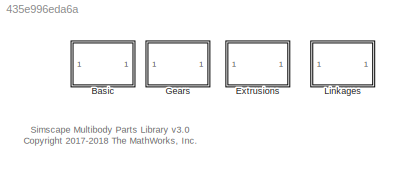
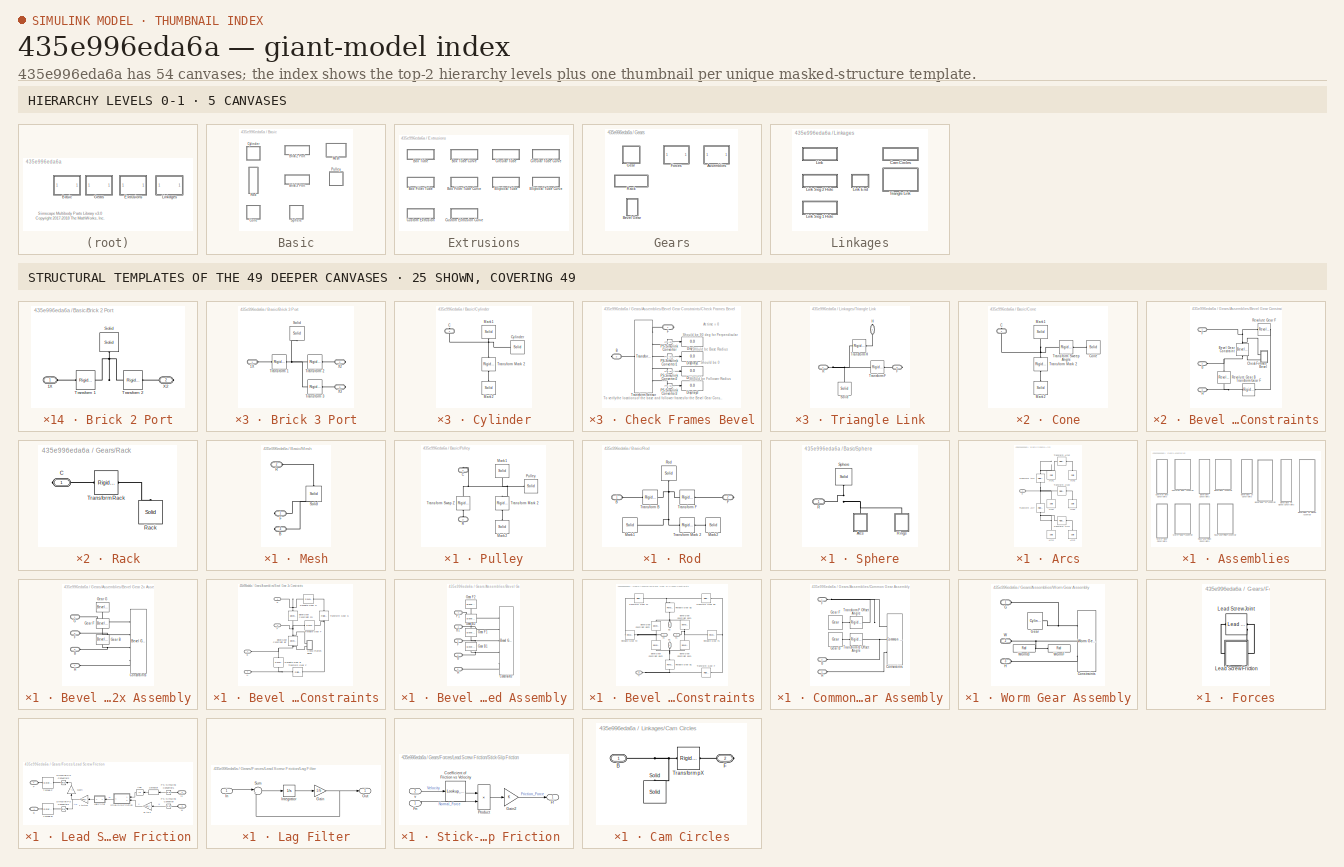
[diagram: thumbnail index - top-2 hierarchy levels (5 canvases) + 25 structural-template representatives of the remaining 49 canvases]
MODEL slx_435e996eda6a
KIND library
CONFIG AbsTol = auto
CONFIG EnableMultiTasking = off
CONFIG FixedStep = auto
CONFIG MaxStep = auto
CONFIG MinStep = auto
CONFIG RelTol = 1e-3
CONFIG SampleTimeConstraint = Unconstrained
CONFIG Solver = VariableStepAuto
CONFIG SolverName = VariableStepAuto
CONFIG StartTime = 0.0
CONFIG StopTime = 10.0
BLOCK [SubSystem] Basic
  Ports = []
  RequestExecContextInheritance = off
BLOCK [SubSystem] Basic/Brick 2 Port
  Ports = [0, 0, 0, 0, 0, 1, 1]
  RequestExecContextInheritance = off
BLOCK [PMIOPort] Basic/Brick 2 Port/1X
  Side = Left
BLOCK [Reference] Basic/Brick 2 Port/Solid  REF=sm_lib/Body Elements/Solid
  Ports = [0, 0, 0, 0, 0, 0, 1]
  SourceBlock = sm_lib/Body Elements/Solid
  SourceProductBaseCode = MS
  SourceProductName = Simscape Multibody
  SourceType = Solid
BLOCK [Reference] Basic/Brick 2 Port/Transform 1  REF=sm_lib/Frames and
Transforms/Rigid
Transform
  Ports = [0, 0, 0, 0, 0, 1, 1]
  SourceBlock = sm_lib/Frames and\nTransforms/Rigid\nTransform
  SourceProductBaseCode = MS
  SourceProductName = Simscape Multibody
  SourceType = Rigid\nTransform
BLOCK [Reference] Basic/Brick 2 Port/Transform 2  REF=sm_lib/Frames and
Transforms/Rigid
Transform
  Ports = [0, 0, 0, 0, 0, 1, 1]
  SourceBlock = sm_lib/Frames and\nTransforms/Rigid\nTransform
  SourceProductBaseCode = MS
  SourceProductName = Simscape Multibody
  SourceType = Rigid\nTransform
BLOCK [PMIOPort] Basic/Brick 2 Port/X2
  Port = 2
  Side = Right
BLOCK [SubSystem] Basic/Brick 3 Port
  Ports = [0, 0, 0, 0, 0, 1, 2]
  RequestExecContextInheritance = off
BLOCK [PMIOPort] Basic/Brick 3 Port/1X
  Side = Left
BLOCK [Reference] Basic/Brick 3 Port/Solid  REF=sm_lib/Body Elements/Solid
  Ports = [0, 0, 0, 0, 0, 0, 1]
  SourceBlock = sm_lib/Body Elements/Solid
  SourceProductBaseCode = MS
  SourceProductName = Simscape Multibody
  SourceType = Solid
BLOCK [Reference] Basic/Brick 3 Port/Transform 1  REF=sm_lib/Frames and
Transforms/Rigid
Transform
  Ports = [0, 0, 0, 0, 0, 1, 1]
  SourceBlock = sm_lib/Frames and\nTransforms/Rigid\nTransform
  SourceProductBaseCode = MS
  SourceProductName = Simscape Multibody
  SourceType = Rigid\nTransform
BLOCK [Reference] Basic/Brick 3 Port/Transform 2  REF=sm_lib/Frames and
Transforms/Rigid
Transform
  Ports = [0, 0, 0, 0, 0, 1, 1]
  SourceBlock = sm_lib/Frames and\nTransforms/Rigid\nTransform
  SourceProductBaseCode = MS
  SourceProductName = Simscape Multibody
  SourceType = Rigid\nTransform
BLOCK [Reference] Basic/Brick 3 Port/Transform 3  REF=sm_lib/Frames and
Transforms/Rigid
Transform
  Ports = [0, 0, 0, 0, 0, 1, 1]
  SourceBlock = sm_lib/Frames and\nTransforms/Rigid\nTransform
  SourceProductBaseCode = MS
  SourceProductName = Simscape Multibody
  SourceType = Rigid\nTransform
BLOCK [PMIOPort] Basic/Brick 3 Port/X2
  Port = 2
  Side = Right
BLOCK [PMIOPort] Basic/Brick 3 Port/X3
  Port = 3
  Side = Right
BLOCK [SubSystem] Basic/Cone
  Ports = [0, 0, 0, 0, 0, 0, 1]
  RequestExecContextInheritance = off
BLOCK [PMIOPort] Basic/Cone/C
  Side = Right
BLOCK [Reference] Basic/Cone/Cone  REF=sm_lib/Body Elements/Solid
  Ports = [0, 0, 0, 0, 0, 0, 1]
  SourceBlock = sm_lib/Body Elements/Solid
  SourceProductBaseCode = MS
  SourceProductName = Simscape Multibody
  SourceType = Solid
BLOCK [Reference] Basic/Cone/Mark1  REF=sm_lib/Body Elements/Solid
  Ports = [0, 0, 0, 0, 0, 0, 1]
  SourceBlock = sm_lib/Body Elements/Solid
  SourceProductBaseCode = MS
  SourceProductName = Simscape Multibody
  SourceType = Solid
BLOCK [Reference] Basic/Cone/Mark2  REF=sm_lib/Body Elements/Solid
  Ports = [0, 0, 0, 0, 0, 0, 1]
  SourceBlock = sm_lib/Body Elements/Solid
  SourceProductBaseCode = MS
  SourceProductName = Simscape Multibody
  SourceType = Solid
BLOCK [Reference] Basic/Cone/Transform Mark 2  REF=sm_lib/Frames and
Transforms/Rigid
Transform
  Ports = [0, 0, 0, 0, 0, 1, 1]
  SourceBlock = sm_lib/Frames and\nTransforms/Rigid\nTransform
  SourceProductBaseCode = MS
  SourceProductName = Simscape Multibody
  SourceType = Rigid\nTransform
BLOCK [Reference] Basic/Cone/Transform Sweep Angle  REF=sm_lib/Frames and
Transforms/Rigid
Transform
  Ports = [0, 0, 0, 0, 0, 1, 1]
  SourceBlock = sm_lib/Frames and\nTransforms/Rigid\nTransform
  SourceProductBaseCode = MS
  SourceProductName = Simscape Multibody
  SourceType = Rigid\nTransform
BLOCK [SubSystem] Basic/Cylinder
  Ports = [0, 0, 0, 0, 0, 0, 1]
  RequestExecContextInheritance = off
BLOCK [PMIOPort] Basic/Cylinder/C
  Side = Right
BLOCK [Reference] Basic/Cylinder/Cylinder  REF=sm_lib/Body Elements/Solid
  Ports = [0, 0, 0, 0, 0, 0, 1]
  SourceBlock = sm_lib/Body Elements/Solid
  SourceProductBaseCode = MS
  SourceProductName = Simscape Multibody
  SourceType = Solid
BLOCK [Reference] Basic/Cylinder/Mark1  REF=sm_lib/Body Elements/Solid
  Ports = [0, 0, 0, 0, 0, 0, 1]
  SourceBlock = sm_lib/Body Elements/Solid
  SourceProductBaseCode = MS
  SourceProductName = Simscape Multibody
  SourceType = Solid
BLOCK [Reference] Basic/Cylinder/Mark2  REF=sm_lib/Body Elements/Solid
  Ports = [0, 0, 0, 0, 0, 0, 1]
  SourceBlock = sm_lib/Body Elements/Solid
  SourceProductBaseCode = MS
  SourceProductName = Simscape Multibody
  SourceType = Solid
BLOCK [Reference] Basic/Cylinder/Transform Mark 2  REF=sm_lib/Frames and
Transforms/Rigid
Transform
  Ports = [0, 0, 0, 0, 0, 1, 1]
  SourceBlock = sm_lib/Frames and\nTransforms/Rigid\nTransform
  SourceProductBaseCode = MS
  SourceProductName = Simscape Multibody
  SourceType = Rigid\nTransform
BLOCK [SubSystem] Basic/Mesh
  Ports = [0, 0, 0, 0, 0, 1, 2]
  RequestExecContextInheritance = off
BLOCK [PMIOPort] Basic/Mesh/B
  Port = 3
  Side = Right
BLOCK [PMIOPort] Basic/Mesh/F
  Side = Right
BLOCK [PMIOPort] Basic/Mesh/R
  Port = 2
  Side = Left
BLOCK [Reference] Basic/Mesh/Solid  REF=sm_lib/Body Elements/Solid
  Ports = [0, 0, 0, 0, 0, 2, 1]
  SourceBlock = sm_lib/Body Elements/Solid
  SourceProductBaseCode = MS
  SourceProductName = Simscape Multibody
  SourceType = Solid
BLOCK [SubSystem] Basic/Pulley
  Ports = [0, 0, 0, 0, 0, 1, 1]
  RequestExecContextInheritance = off
BLOCK [PMIOPort] Basic/Pulley/C
  Side = Right
BLOCK [Reference] Basic/Pulley/Mark1  REF=sm_lib/Body Elements/Solid
  Ports = [0, 0, 0, 0, 0, 0, 1]
  SourceBlock = sm_lib/Body Elements/Solid
  SourceProductBaseCode = MS
  SourceProductName = Simscape Multibody
  SourceType = Solid
BLOCK [Reference] Basic/Pulley/Mark2  REF=sm_lib/Body Elements/Solid
  Ports = [0, 0, 0, 0, 0, 0, 1]
  SourceBlock = sm_lib/Body Elements/Solid
  SourceProductBaseCode = MS
  SourceProductName = Simscape Multibody
  SourceType = Solid
BLOCK [Reference] Basic/Pulley/Pulley  REF=sm_lib/Body Elements/Solid
  Ports = [0, 0, 0, 0, 0, 0, 1]
  SourceBlock = sm_lib/Body Elements/Solid
  SourceProductBaseCode = MS
  SourceProductName = Simscape Multibody
  SourceType = Solid
BLOCK [PMIOPort] Basic/Pulley/R
  Port = 2
  Side = Left
BLOCK [Reference] Basic/Pulley/Transform Mark 2  REF=sm_lib/Frames and
Transforms/Rigid
Transform
  Ports = [0, 0, 0, 0, 0, 1, 1]
  SourceBlock = sm_lib/Frames and\nTransforms/Rigid\nTransform
  SourceProductBaseCode = MS
  SourceProductName = Simscape Multibody
  SourceType = Rigid\nTransform
BLOCK [Reference] Basic/Pulley/Transform Swap Z  REF=sm_lib/Frames and
Transforms/Rigid
Transform
  Ports = [0, 0, 0, 0, 0, 1, 1]
  SourceBlock = sm_lib/Frames and\nTransforms/Rigid\nTransform
  SourceProductBaseCode = MS
  SourceProductName = Simscape Multibody
  SourceType = Rigid\nTransform
BLOCK [SubSystem] Basic/Rod
  Ports = [0, 0, 0, 0, 0, 1, 1]
  RequestExecContextInheritance = off
BLOCK [PMIOPort] Basic/Rod/B
  Side = Left
BLOCK [PMIOPort] Basic/Rod/F
  Port = 2
  Side = Right
BLOCK [Reference] Basic/Rod/Mark1  REF=sm_lib/Body Elements/Solid
  Ports = [0, 0, 0, 0, 0, 0, 1]
  SourceBlock = sm_lib/Body Elements/Solid
  SourceProductBaseCode = MS
  SourceProductName = Simscape Multibody
  SourceType = Solid
BLOCK [Reference] Basic/Rod/Mark2  REF=sm_lib/Body Elements/Solid
  Ports = [0, 0, 0, 0, 0, 0, 1]
  SourceBlock = sm_lib/Body Elements/Solid
  SourceProductBaseCode = MS
  SourceProductName = Simscape Multibody
  SourceType = Solid
BLOCK [Reference] Basic/Rod/Rod  REF=sm_lib/Body Elements/Solid
  Ports = [0, 0, 0, 0, 0, 0, 1]
  SourceBlock = sm_lib/Body Elements/Solid
  SourceProductBaseCode = MS
  SourceProductName = Simscape Multibody
  SourceType = Solid
BLOCK [Reference] Basic/Rod/Transform B  REF=sm_lib/Frames and
Transforms/Rigid
Transform
  Ports = [0, 0, 0, 0, 0, 1, 1]
  SourceBlock = sm_lib/Frames and\nTransforms/Rigid\nTransform
  SourceProductBaseCode = MS
  SourceProductName = Simscape Multibody
  SourceType = Rigid\nTransform
BLOCK [Reference] Basic/Rod/Transform F  REF=sm_lib/Frames and
Transforms/Rigid
Transform
  Ports = [0, 0, 0, 0, 0, 1, 1]
  SourceBlock = sm_lib/Frames and\nTransforms/Rigid\nTransform
  SourceProductBaseCode = MS
  SourceProductName = Simscape Multibody
  SourceType = Rigid\nTransform
BLOCK [Reference] Basic/Rod/Transform Mark 2  REF=sm_lib/Frames and
Transforms/Rigid
Transform
  Ports = [0, 0, 0, 0, 0, 1, 1]
  SourceBlock = sm_lib/Frames and\nTransforms/Rigid\nTransform
  SourceProductBaseCode = MS
  SourceProductName = Simscape Multibody
  SourceType = Rigid\nTransform
BLOCK [SubSystem] Basic/Sphere
  Ports = [0, 0, 0, 0, 0, 1]
  RequestExecContextInheritance = off
  Tag = CustomStyle
BLOCK [SubSystem] Basic/Sphere/Arcs
  Ports = [0, 0, 0, 0, 0, 1]
  RequestExecContextInheritance = off
BLOCK [Reference] Basic/Sphere/Arcs/ArcX1  REF=sm_lib/Body Elements/Solid
  Ports = [0, 0, 0, 0, 0, 0, 1]
  SourceBlock = sm_lib/Body Elements/Solid
  SourceProductBaseCode = MS
  SourceProductName = Simscape Multibody
  SourceType = Solid
BLOCK [Reference] Basic/Sphere/Arcs/ArcX2  REF=sm_lib/Body Elements/Solid
  Ports = [0, 0, 0, 0, 0, 0, 1]
  SourceBlock = sm_lib/Body Elements/Solid
  SourceProductBaseCode = MS
  SourceProductName = Simscape Multibody
  SourceType = Solid
BLOCK [Reference] Basic/Sphere/Arcs/ArcY1  REF=sm_lib/Body Elements/Solid
  Ports = [0, 0, 0, 0, 0, 0, 1]
  SourceBlock = sm_lib/Body Elements/Solid
  SourceProductBaseCode = MS
  SourceProductName = Simscape Multibody
  SourceType = Solid
BLOCK [Reference] Basic/Sphere/Arcs/ArcY2  REF=sm_lib/Body Elements/Solid
  Ports = [0, 0, 0, 0, 0, 0, 1]
  SourceBlock = sm_lib/Body Elements/Solid
  SourceProductBaseCode = MS
  SourceProductName = Simscape Multibody
  SourceType = Solid
BLOCK [Reference] Basic/Sphere/Arcs/ArcZ1  REF=sm_lib/Body Elements/Solid
  Ports = [0, 0, 0, 0, 0, 0, 1]
  SourceBlock = sm_lib/Body Elements/Solid
  SourceProductBaseCode = MS
  SourceProductName = Simscape Multibody
  SourceType = Solid
BLOCK [Reference] Basic/Sphere/Arcs/ArcZ2  REF=sm_lib/Body Elements/Solid
  Ports = [0, 0, 0, 0, 0, 0, 1]
  SourceBlock = sm_lib/Body Elements/Solid
  SourceProductBaseCode = MS
  SourceProductName = Simscape Multibody
  SourceType = Solid
BLOCK [PMIOPort] Basic/Sphere/Arcs/R
  Side = Left
BLOCK [Reference] Basic/Sphere/Arcs/Transform ArcX  REF=sm_lib/Frames and
Transforms/Rigid
Transform
  Ports = [0, 0, 0, 0, 0, 1, 1]
  SourceBlock = sm_lib/Frames and\nTransforms/Rigid\nTransform
  SourceProductBaseCode = MS
  SourceProductName = Simscape Multibody
  SourceType = Rigid\nTransform
BLOCK [Reference] Basic/Sphere/Arcs/Transform ArcX2  REF=sm_lib/Frames and
Transforms/Rigid
Transform
  Ports = [0, 0, 0, 0, 0, 1, 1]
  SourceBlock = sm_lib/Frames and\nTransforms/Rigid\nTransform
  SourceProductBaseCode = MS
  SourceProductName = Simscape Multibody
  SourceType = Rigid\nTransform
BLOCK [Reference] Basic/Sphere/Arcs/Transform ArcY  REF=sm_lib/Frames and
Transforms/Rigid
Transform
  Ports = [0, 0, 0, 0, 0, 1, 1]
  SourceBlock = sm_lib/Frames and\nTransforms/Rigid\nTransform
  SourceProductBaseCode = MS
  SourceProductName = Simscape Multibody
  SourceType = Rigid\nTransform
BLOCK [Reference] Basic/Sphere/Arcs/Transform ArcY1  REF=sm_lib/Frames and
Transforms/Rigid
Transform
  Ports = [0, 0, 0, 0, 0, 1, 1]
  SourceBlock = sm_lib/Frames and\nTransforms/Rigid\nTransform
  SourceProductBaseCode = MS
  SourceProductName = Simscape Multibody
  SourceType = Rigid\nTransform
BLOCK [Reference] Basic/Sphere/Arcs/Transform ArcZ2  REF=sm_lib/Frames and
Transforms/Rigid
Transform
  Ports = [0, 0, 0, 0, 0, 1, 1]
  SourceBlock = sm_lib/Frames and\nTransforms/Rigid\nTransform
  SourceProductBaseCode = MS
  SourceProductName = Simscape Multibody
  SourceType = Rigid\nTransform
BLOCK [PMIOPort] Basic/Sphere/R
  Side = Left
BLOCK [SubSystem] Basic/Sphere/Rings
  Ports = [0, 0, 0, 0, 0, 1]
  RequestExecContextInheritance = off
BLOCK [PMIOPort] Basic/Sphere/Rings/R
  Side = Left
BLOCK [Reference] Basic/Sphere/Rings/RingX  REF=sm_lib/Body Elements/Solid
  Ports = [0, 0, 0, 0, 0, 0, 1]
  SourceBlock = sm_lib/Body Elements/Solid
  SourceProductBaseCode = MS
  SourceProductName = Simscape Multibody
  SourceType = Solid
BLOCK [Reference] Basic/Sphere/Rings/RingY  REF=sm_lib/Body Elements/Solid
  Ports = [0, 0, 0, 0, 0, 0, 1]
  SourceBlock = sm_lib/Body Elements/Solid
  SourceProductBaseCode = MS
  SourceProductName = Simscape Multibody
  SourceType = Solid
BLOCK [Reference] Basic/Sphere/Rings/RingZ  REF=sm_lib/Body Elements/Solid
  Ports = [0, 0, 0, 0, 0, 0, 1]
  SourceBlock = sm_lib/Body Elements/Solid
  SourceProductBaseCode = MS
  SourceProductName = Simscape Multibody
  SourceType = Solid
BLOCK [Reference] Basic/Sphere/Rings/Transform RingX  REF=sm_lib/Frames and
Transforms/Rigid
Transform
  Ports = [0, 0, 0, 0, 0, 1, 1]
  SourceBlock = sm_lib/Frames and\nTransforms/Rigid\nTransform
  SourceProductBaseCode = MS
  SourceProductName = Simscape Multibody
  SourceType = Rigid\nTransform
BLOCK [Reference] Basic/Sphere/Rings/Transform RingY  REF=sm_lib/Frames and
Transforms/Rigid
Transform
  Ports = [0, 0, 0, 0, 0, 1, 1]
  SourceBlock = sm_lib/Frames and\nTransforms/Rigid\nTransform
  SourceProductBaseCode = MS
  SourceProductName = Simscape Multibody
  SourceType = Rigid\nTransform
BLOCK [Reference] Basic/Sphere/Sphere  REF=sm_lib/Body Elements/Solid
  Ports = [0, 0, 0, 0, 0, 0, 1]
  SourceBlock = sm_lib/Body Elements/Solid
  SourceProductBaseCode = MS
  SourceProductName = Simscape Multibody
  SourceType = Solid
BLOCK [SubSystem] Extrusions
  Ports = []
  RequestExecContextInheritance = off
BLOCK [SubSystem] Extrusions/Box Fillet Tube
  Ports = [0, 0, 0, 0, 0, 1, 1]
  RequestExecContextInheritance = off
BLOCK [SubSystem] Extrusions/Box Fillet Tube Curve
  Ports = [0, 0, 0, 0, 0, 1, 1]
  RequestExecContextInheritance = off
BLOCK [PMIOPort] Extrusions/Box Fillet Tube Curve/B
  Port = 2
  Side = Left
BLOCK [PMIOPort] Extrusions/Box Fillet Tube Curve/F
  Side = Right
BLOCK [Reference] Extrusions/Box Fillet Tube Curve/Solid  REF=sm_lib/Body Elements/Solid
  Ports = [0, 0, 0, 0, 0, 0, 1]
  SourceBlock = sm_lib/Body Elements/Solid
  SourceProductBaseCode = MS
  SourceProductName = Simscape Multibody
  SourceType = Solid
BLOCK [Reference] Extrusions/Box Fillet Tube Curve/Transform B  REF=sm_lib/Frames and
Transforms/Rigid
Transform
  Ports = [0, 0, 0, 0, 0, 1, 1]
  SourceBlock = sm_lib/Frames and\nTransforms/Rigid\nTransform
  SourceProductBaseCode = MS
  SourceProductName = Simscape Multibody
  SourceType = Rigid\nTransform
BLOCK [Reference] Extrusions/Box Fillet Tube Curve/Transform F  REF=sm_lib/Frames and
Transforms/Rigid
Transform
  Ports = [0, 0, 0, 0, 0, 1, 1]
  SourceBlock = sm_lib/Frames and\nTransforms/Rigid\nTransform
  SourceProductBaseCode = MS
  SourceProductName = Simscape Multibody
  SourceType = Rigid\nTransform
BLOCK [PMIOPort] Extrusions/Box Fillet Tube/B
  Port = 2
  Side = Left
BLOCK [PMIOPort] Extrusions/Box Fillet Tube/F
  Side = Right
BLOCK [Reference] Extrusions/Box Fillet Tube/Solid  REF=sm_lib/Body Elements/Solid
  Ports = [0, 0, 0, 0, 0, 0, 1]
  SourceBlock = sm_lib/Body Elements/Solid
  SourceProductBaseCode = MS
  SourceProductName = Simscape Multibody
  SourceType = Solid
BLOCK [Reference] Extrusions/Box Fillet Tube/Transform B  REF=sm_lib/Frames and
Transforms/Rigid
Transform
  Ports = [0, 0, 0, 0, 0, 1, 1]
  SourceBlock = sm_lib/Frames and\nTransforms/Rigid\nTransform
  SourceProductBaseCode = MS
  SourceProductName = Simscape Multibody
  SourceType = Rigid\nTransform
BLOCK [Reference] Extrusions/Box Fillet Tube/Transform F  REF=sm_lib/Frames and
Transforms/Rigid
Transform
  Ports = [0, 0, 0, 0, 0, 1, 1]
  SourceBlock = sm_lib/Frames and\nTransforms/Rigid\nTransform
  SourceProductBaseCode = MS
  SourceProductName = Simscape Multibody
  SourceType = Rigid\nTransform
BLOCK [SubSystem] Extrusions/Box Tube
  Ports = [0, 0, 0, 0, 0, 1, 1]
  RequestExecContextInheritance = off
BLOCK [SubSystem] Extrusions/Box Tube Curve
  Ports = [0, 0, 0, 0, 0, 1, 1]
  RequestExecContextInheritance = off
BLOCK [PMIOPort] Extrusions/Box Tube Curve/B
  Port = 2
  Side = Left
BLOCK [PMIOPort] Extrusions/Box Tube Curve/F
  Side = Right
BLOCK [Reference] Extrusions/Box Tube Curve/Solid  REF=sm_lib/Body Elements/Solid
  Ports = [0, 0, 0, 0, 0, 0, 1]
  SourceBlock = sm_lib/Body Elements/Solid
  SourceProductBaseCode = MS
  SourceProductName = Simscape Multibody
  SourceType = Solid
BLOCK [Reference] Extrusions/Box Tube Curve/Transform B  REF=sm_lib/Frames and
Transforms/Rigid
Transform
  Ports = [0, 0, 0, 0, 0, 1, 1]
  SourceBlock = sm_lib/Frames and\nTransforms/Rigid\nTransform
  SourceProductBaseCode = MS
  SourceProductName = Simscape Multibody
  SourceType = Rigid\nTransform
BLOCK [Reference] Extrusions/Box Tube Curve/Transform F  REF=sm_lib/Frames and
Transforms/Rigid
Transform
  Ports = [0, 0, 0, 0, 0, 1, 1]
  SourceBlock = sm_lib/Frames and\nTransforms/Rigid\nTransform
  SourceProductBaseCode = MS
  SourceProductName = Simscape Multibody
  SourceType = Rigid\nTransform
BLOCK [PMIOPort] Extrusions/Box Tube/B
  Port = 2
  Side = Left
BLOCK [PMIOPort] Extrusions/Box Tube/F
  Side = Right
BLOCK [Reference] Extrusions/Box Tube/Solid  REF=sm_lib/Body Elements/Solid
  Ports = [0, 0, 0, 0, 0, 0, 1]
  SourceBlock = sm_lib/Body Elements/Solid
  SourceProductBaseCode = MS
  SourceProductName = Simscape Multibody
  SourceType = Solid
BLOCK [Reference] Extrusions/Box Tube/Transform B  REF=sm_lib/Frames and
Transforms/Rigid
Transform
  Ports = [0, 0, 0, 0, 0, 1, 1]
  SourceBlock = sm_lib/Frames and\nTransforms/Rigid\nTransform
  SourceProductBaseCode = MS
  SourceProductName = Simscape Multibody
  SourceType = Rigid\nTransform
BLOCK [Reference] Extrusions/Box Tube/Transform F  REF=sm_lib/Frames and
Transforms/Rigid
Transform
  Ports = [0, 0, 0, 0, 0, 1, 1]
  SourceBlock = sm_lib/Frames and\nTransforms/Rigid\nTransform
  SourceProductBaseCode = MS
  SourceProductName = Simscape Multibody
  SourceType = Rigid\nTransform
BLOCK [SubSystem] Extrusions/Circular Tube
  Ports = [0, 0, 0, 0, 0, 1, 1]
  RequestExecContextInheritance = off
BLOCK [SubSystem] Extrusions/Circular Tube Curve
  Ports = [0, 0, 0, 0, 0, 1, 1]
  RequestExecContextInheritance = off
BLOCK [PMIOPort] Extrusions/Circular Tube Curve/B
  Port = 2
  Side = Left
BLOCK [PMIOPort] Extrusions/Circular Tube Curve/F
  Side = Right
BLOCK [Reference] Extrusions/Circular Tube Curve/Solid  REF=sm_lib/Body Elements/Solid
  Ports = [0, 0, 0, 0, 0, 0, 1]
  SourceBlock = sm_lib/Body Elements/Solid
  SourceProductBaseCode = MS
  SourceProductName = Simscape Multibody
  SourceType = Solid
BLOCK [Reference] Extrusions/Circular Tube Curve/Transform B  REF=sm_lib/Frames and
Transforms/Rigid
Transform
  Ports = [0, 0, 0, 0, 0, 1, 1]
  SourceBlock = sm_lib/Frames and\nTransforms/Rigid\nTransform
  SourceProductBaseCode = MS
  SourceProductName = Simscape Multibody
  SourceType = Rigid\nTransform
BLOCK [Reference] Extrusions/Circular Tube Curve/Transform F  REF=sm_lib/Frames and
Transforms/Rigid
Transform
  Ports = [0, 0, 0, 0, 0, 1, 1]
  SourceBlock = sm_lib/Frames and\nTransforms/Rigid\nTransform
  SourceProductBaseCode = MS
  SourceProductName = Simscape Multibody
  SourceType = Rigid\nTransform
BLOCK [PMIOPort] Extrusions/Circular Tube/B
  Port = 2
  Side = Left
BLOCK [PMIOPort] Extrusions/Circular Tube/F
  Side = Right
BLOCK [Reference] Extrusions/Circular Tube/Solid  REF=sm_lib/Body Elements/Solid
  Ports = [0, 0, 0, 0, 0, 0, 1]
  SourceBlock = sm_lib/Body Elements/Solid
  SourceProductBaseCode = MS
  SourceProductName = Simscape Multibody
  SourceType = Solid
BLOCK [Reference] Extrusions/Circular Tube/Transform B  REF=sm_lib/Frames and
Transforms/Rigid
Transform
  Ports = [0, 0, 0, 0, 0, 1, 1]
  SourceBlock = sm_lib/Frames and\nTransforms/Rigid\nTransform
  SourceProductBaseCode = MS
  SourceProductName = Simscape Multibody
  SourceType = Rigid\nTransform
BLOCK [Reference] Extrusions/Circular Tube/Transform F  REF=sm_lib/Frames and
Transforms/Rigid
Transform
  Ports = [0, 0, 0, 0, 0, 1, 1]
  SourceBlock = sm_lib/Frames and\nTransforms/Rigid\nTransform
  SourceProductBaseCode = MS
  SourceProductName = Simscape Multibody
  SourceType = Rigid\nTransform
BLOCK [SubSystem] Extrusions/Custom Extrusion
  Ports = [0, 0, 0, 0, 0, 1, 1]
  RequestExecContextInheritance = off
BLOCK [SubSystem] Extrusions/Custom Extrusion Curve
  Ports = [0, 0, 0, 0, 0, 1, 1]
  RequestExecContextInheritance = off
BLOCK [PMIOPort] Extrusions/Custom Extrusion Curve/B
  Port = 2
  Side = Left
BLOCK [PMIOPort] Extrusions/Custom Extrusion Curve/F
  Side = Right
BLOCK [Reference] Extrusions/Custom Extrusion Curve/Solid  REF=sm_lib/Body Elements/Solid
  Ports = [0, 0, 0, 0, 0, 0, 1]
  SourceBlock = sm_lib/Body Elements/Solid
  SourceProductBaseCode = MS
  SourceProductName = Simscape Multibody
  SourceType = Solid
BLOCK [Reference] Extrusions/Custom Extrusion Curve/Transform B  REF=sm_lib/Frames and
Transforms/Rigid
Transform
  Ports = [0, 0, 0, 0, 0, 1, 1]
  SourceBlock = sm_lib/Frames and\nTransforms/Rigid\nTransform
  SourceProductBaseCode = MS
  SourceProductName = Simscape Multibody
  SourceType = Rigid\nTransform
BLOCK [Reference] Extrusions/Custom Extrusion Curve/Transform F  REF=sm_lib/Frames and
Transforms/Rigid
Transform
  Ports = [0, 0, 0, 0, 0, 1, 1]
  SourceBlock = sm_lib/Frames and\nTransforms/Rigid\nTransform
  SourceProductBaseCode = MS
  SourceProductName = Simscape Multibody
  SourceType = Rigid\nTransform
BLOCK [PMIOPort] Extrusions/Custom Extrusion/B
  Port = 2
  Side = Left
BLOCK [PMIOPort] Extrusions/Custom Extrusion/F
  Side = Right
BLOCK [Reference] Extrusions/Custom Extrusion/Solid  REF=sm_lib/Body Elements/Solid
  Ports = [0, 0, 0, 0, 0, 0, 1]
  SourceBlock = sm_lib/Body Elements/Solid
  SourceProductBaseCode = MS
  SourceProductName = Simscape Multibody
  SourceType = Solid
BLOCK [Reference] Extrusions/Custom Extrusion/Transform B  REF=sm_lib/Frames and
Transforms/Rigid
Transform
  Ports = [0, 0, 0, 0, 0, 1, 1]
  SourceBlock = sm_lib/Frames and\nTransforms/Rigid\nTransform
  SourceProductBaseCode = MS
  SourceProductName = Simscape Multibody
  SourceType = Rigid\nTransform
BLOCK [Reference] Extrusions/Custom Extrusion/Transform F  REF=sm_lib/Frames and
Transforms/Rigid
Transform
  Ports = [0, 0, 0, 0, 0, 1, 1]
  SourceBlock = sm_lib/Frames and\nTransforms/Rigid\nTransform
  SourceProductBaseCode = MS
  SourceProductName = Simscape Multibody
  SourceType = Rigid\nTransform
BLOCK [SubSystem] Extrusions/Elliptical Tube
  Ports = [0, 0, 0, 0, 0, 1, 1]
  RequestExecContextInheritance = off
BLOCK [SubSystem] Extrusions/Elliptical Tube Curve
  Ports = [0, 0, 0, 0, 0, 1, 1]
  RequestExecContextInheritance = off
BLOCK [PMIOPort] Extrusions/Elliptical Tube Curve/B
  Port = 2
  Side = Left
BLOCK [PMIOPort] Extrusions/Elliptical Tube Curve/F
  Side = Right
BLOCK [Reference] Extrusions/Elliptical Tube Curve/Solid  REF=sm_lib/Body Elements/Solid
  Ports = [0, 0, 0, 0, 0, 0, 1]
  SourceBlock = sm_lib/Body Elements/Solid
  SourceProductBaseCode = MS
  SourceProductName = Simscape Multibody
  SourceType = Solid
BLOCK [Reference] Extrusions/Elliptical Tube Curve/Transform B  REF=sm_lib/Frames and
Transforms/Rigid
Transform
  Ports = [0, 0, 0, 0, 0, 1, 1]
  SourceBlock = sm_lib/Frames and\nTransforms/Rigid\nTransform
  SourceProductBaseCode = MS
  SourceProductName = Simscape Multibody
  SourceType = Rigid\nTransform
BLOCK [Reference] Extrusions/Elliptical Tube Curve/Transform F  REF=sm_lib/Frames and
Transforms/Rigid
Transform
  Ports = [0, 0, 0, 0, 0, 1, 1]
  SourceBlock = sm_lib/Frames and\nTransforms/Rigid\nTransform
  SourceProductBaseCode = MS
  SourceProductName = Simscape Multibody
  SourceType = Rigid\nTransform
BLOCK [PMIOPort] Extrusions/Elliptical Tube/B
  Port = 2
  Side = Left
BLOCK [PMIOPort] Extrusions/Elliptical Tube/F
  Side = Right
BLOCK [Reference] Extrusions/Elliptical Tube/Solid  REF=sm_lib/Body Elements/Solid
  Ports = [0, 0, 0, 0, 0, 0, 1]
  SourceBlock = sm_lib/Body Elements/Solid
  SourceProductBaseCode = MS
  SourceProductName = Simscape Multibody
  SourceType = Solid
BLOCK [Reference] Extrusions/Elliptical Tube/Transform B  REF=sm_lib/Frames and
Transforms/Rigid
Transform
  Ports = [0, 0, 0, 0, 0, 1, 1]
  SourceBlock = sm_lib/Frames and\nTransforms/Rigid\nTransform
  SourceProductBaseCode = MS
  SourceProductName = Simscape Multibody
  SourceType = Rigid\nTransform
BLOCK [Reference] Extrusions/Elliptical Tube/Transform F  REF=sm_lib/Frames and
Transforms/Rigid
Transform
  Ports = [0, 0, 0, 0, 0, 1, 1]
  SourceBlock = sm_lib/Frames and\nTransforms/Rigid\nTransform
  SourceProductBaseCode = MS
  SourceProductName = Simscape Multibody
  SourceType = Rigid\nTransform
BLOCK [SubSystem] Gears
  Ports = []
  RequestExecContextInheritance = off
BLOCK [SubSystem] Gears/Assemblies
  Ports = []
  RequestExecContextInheritance = off
BLOCK [SubSystem] Gears/Assemblies/Bevel Gear 2x Assembly
  Ports = [0, 0, 0, 0, 0, 4]
  RequestExecContextInheritance = off
  Tag = PublishSubsystem
BLOCK [PMIOPort] Gears/Assemblies/Bevel Gear 2x Assembly/B
  Port = 3
  Side = Left
BLOCK [Reference] Gears/Assemblies/Bevel Gear 2x Assembly/Constraints  REF=$bdroot/Gears/Assemblies/Bevel Gear 2x
Constraints
  Ports = [0, 0, 0, 0, 0, 4]
  SourceBlock = $bdroot/Gears/Assemblies/Bevel Gear 2x\nConstraints
  SourceType = Double Bevel Gear Assembly Constraints
BLOCK [PMIOPort] Gears/Assemblies/Bevel Gear 2x Assembly/F
  Port = 2
  Side = Left
BLOCK [PMIOPort] Gears/Assemblies/Bevel Gear 2x Assembly/G
  Side = Left
BLOCK [Reference] Gears/Assemblies/Bevel Gear 2x Assembly/Gear B  REF=$bdroot/Gears/Bevel Gear
  Ports = [0, 0, 0, 0, 0, 0, 1]
  SourceBlock = $bdroot/Gears/Bevel Gear
  SourceType = Bevel Gear
BLOCK [Reference] Gears/Assemblies/Bevel Gear 2x Assembly/Gear F  REF=$bdroot/Gears/Bevel Gear
  Ports = [0, 0, 0, 0, 0, 0, 1]
  SourceBlock = $bdroot/Gears/Bevel Gear
  SourceType = Bevel Gear
BLOCK [Reference] Gears/Assemblies/Bevel Gear 2x Assembly/Gear G  REF=$bdroot/Gears/Bevel Gear
  Ports = [0, 0, 0, 0, 0, 0, 1]
  SourceBlock = $bdroot/Gears/Bevel Gear
  SourceType = Bevel Gear
BLOCK [PMIOPort] Gears/Assemblies/Bevel Gear 2x Assembly/H
  Port = 4
  Side = Left
BLOCK [SubSystem] Gears/Assemblies/Bevel Gear 2x Constraints
  Ports = [0, 0, 0, 0, 0, 4]
  RequestExecContextInheritance = off
BLOCK [PMIOPort] Gears/Assemblies/Bevel Gear 2x Constraints/B
  Port = 3
  Side = Left
BLOCK [Reference] Gears/Assemblies/Bevel Gear 2x Constraints/Bevel Gear Constraint BF  REF=sm_lib/Gears and
Couplings/Gears/Bevel Gear
Constraint
  Ports = [0, 0, 0, 0, 0, 1, 1]
  SourceBlock = sm_lib/Gears and\nCouplings/Gears/Bevel Gear\nConstraint
  SourceProductBaseCode = MS
  SourceProductName = Simscape Multibody
  SourceType = Bevel Gear\nConstraint
BLOCK [Reference] Gears/Assemblies/Bevel Gear 2x Constraints/Bevel Gear Constraint FG  REF=sm_lib/Gears and
Couplings/Gears/Bevel Gear
Constraint
  Ports = [0, 0, 0, 0, 0, 1, 1]
  SourceBlock = sm_lib/Gears and\nCouplings/Gears/Bevel Gear\nConstraint
  SourceProductBaseCode = MS
  SourceProductName = Simscape Multibody
  SourceType = Bevel Gear\nConstraint
BLOCK [SubSystem] Gears/Assemblies/Bevel Gear 2x Constraints/Check Frames Bevel
  Ports = [0, 0, 0, 0, 0, 0, 2]
  RequestExecContextInheritance = off
BLOCK [PMIOPort] Gears/Assemblies/Bevel Gear 2x Constraints/Check Frames Bevel/B
  Port = 2
  Side = Right
BLOCK [Display] Gears/Assemblies/Bevel Gear 2x Constraints/Check Frames Bevel/Display
  Decimation = 1e5
  Ports = [1]
BLOCK [Display] Gears/Assemblies/Bevel Gear 2x Constraints/Check Frames Bevel/Display1
  Decimation = 1e5
  Ports = [1]
BLOCK [Display] Gears/Assemblies/Bevel Gear 2x Constraints/Check Frames Bevel/Display2
  Decimation = 1e5
  Format = long
  Ports = [1]
BLOCK [Display] Gears/Assemblies/Bevel Gear 2x Constraints/Check Frames Bevel/Display3
  Decimation = 1e5
  Ports = [1]
BLOCK [PMIOPort] Gears/Assemblies/Bevel Gear 2x Constraints/Check Frames Bevel/F
  Side = Right
BLOCK [Reference] Gears/Assemblies/Bevel Gear 2x Constraints/Check Frames Bevel/PS-Simulink Converter  REF=nesl_utility/PS-Simulink
Converter
  Ports = [0, 1, 0, 0, 0, 1]
  SourceBlock = nesl_utility/PS-Simulink\nConverter
  SourceProductBaseCode = SS
  SourceProductName = Simscape
  SourceType = PS-Simulink\nConverter
BLOCK [Reference] Gears/Assemblies/Bevel Gear 2x Constraints/Check Frames Bevel/PS-Simulink Converter1  REF=nesl_utility/PS-Simulink
Converter
  Ports = [0, 1, 0, 0, 0, 1]
  SourceBlock = nesl_utility/PS-Simulink\nConverter
  SourceProductBaseCode = SS
  SourceProductName = Simscape
  SourceType = PS-Simulink\nConverter
BLOCK [Reference] Gears/Assemblies/Bevel Gear 2x Constraints/Check Frames Bevel/PS-Simulink Converter2  REF=nesl_utility/PS-Simulink
Converter
  Ports = [0, 1, 0, 0, 0, 1]
  SourceBlock = nesl_utility/PS-Simulink\nConverter
  SourceProductBaseCode = SS
  SourceProductName = Simscape
  SourceType = PS-Simulink\nConverter
BLOCK [Reference] Gears/Assemblies/Bevel Gear 2x Constraints/Check Frames Bevel/PS-Simulink Converter3  REF=nesl_utility/PS-Simulink
Converter
  Ports = [0, 1, 0, 0, 0, 1]
  SourceBlock = nesl_utility/PS-Simulink\nConverter
  SourceProductBaseCode = SS
  SourceProductName = Simscape
  SourceType = PS-Simulink\nConverter
BLOCK [Reference] Gears/Assemblies/Bevel Gear 2x Constraints/Check Frames Bevel/Transform Sensor  REF=sm_lib/Frames and
Transforms/Transform
Sensor
  Ports = [0, 0, 0, 0, 0, 1, 5]
  SourceBlock = sm_lib/Frames and\nTransforms/Transform\nSensor
  SourceProductBaseCode = MS
  SourceProductName = Simscape Multibody
  SourceType = Transform\nSensor
BLOCK [PMIOPort] Gears/Assemblies/Bevel Gear 2x Constraints/F
  Port = 2
  Side = Left
BLOCK [PMIOPort] Gears/Assemblies/Bevel Gear 2x Constraints/G
  Side = Left
BLOCK [PMIOPort] Gears/Assemblies/Bevel Gear 2x Constraints/H
  Port = 4
  Side = Left
BLOCK [Reference] Gears/Assemblies/Bevel Gear 2x Constraints/Revolute Gear B  REF=sm_lib/Joints/Revolute Joint
  Ports = [0, 0, 0, 0, 0, 1, 1]
  SourceBlock = sm_lib/Joints/Revolute Joint
  SourceProductBaseCode = MS
  SourceProductName = Simscape Multibody
  SourceType = Revolute Joint
BLOCK [Reference] Gears/Assemblies/Bevel Gear 2x Constraints/Revolute Gear F  REF=sm_lib/Joints/Revolute Joint
  Ports = [0, 0, 0, 0, 0, 1, 1]
  SourceBlock = sm_lib/Joints/Revolute Joint
  SourceProductBaseCode = MS
  SourceProductName = Simscape Multibody
  SourceType = Revolute Joint
BLOCK [Reference] Gears/Assemblies/Bevel Gear 2x Constraints/Revolute Gear G  REF=sm_lib/Joints/Revolute Joint
  Ports = [0, 0, 0, 0, 0, 1, 1]
  SourceBlock = sm_lib/Joints/Revolute Joint
  SourceProductBaseCode = MS
  SourceProductName = Simscape Multibody
  SourceType = Revolute Joint
BLOCK [Reference] Gears/Assemblies/Bevel Gear 2x Constraints/Transform Gear F  REF=sm_lib/Frames and
Transforms/Rigid
Transform
  Ports = [0, 0, 0, 0, 0, 1, 1]
  SourceBlock = sm_lib/Frames and\nTransforms/Rigid\nTransform
  SourceProductBaseCode = MS
  SourceProductName = Simscape Multibody
  SourceType = Rigid\nTransform
BLOCK [Reference] Gears/Assemblies/Bevel Gear 2x Constraints/Transform Gear G  REF=sm_lib/Frames and
Transforms/Rigid
Transform
  Ports = [0, 0, 0, 0, 0, 1, 1]
  SourceBlock = sm_lib/Frames and\nTransforms/Rigid\nTransform
  SourceProductBaseCode = MS
  SourceProductName = Simscape Multibody
  SourceType = Rigid\nTransform
BLOCK [SubSystem] Gears/Assemblies/Bevel Gear 4x Closed Assembly
  Ports = [0, 0, 0, 0, 0, 5]
  RequestExecContextInheritance = off
  Tag = PublishSubsystem
BLOCK [PMIOPort] Gears/Assemblies/Bevel Gear 4x Closed Assembly/B
  Port = 4
  Side = Left
BLOCK [PMIOPort] Gears/Assemblies/Bevel Gear 4x Closed Assembly/B1
  Port = 2
  Side = Left
BLOCK [Reference] Gears/Assemblies/Bevel Gear 4x Closed Assembly/Constraints  REF=$bdroot/Gears/Assemblies/Bevel Gear 4x
Closed Constraints
  Ports = [0, 0, 0, 0, 0, 5]
  SourceBlock = $bdroot/Gears/Assemblies/Bevel Gear 4x\nClosed Constraints
  SourceType = Bevel Gear Assembly Constraints
BLOCK [PMIOPort] Gears/Assemblies/Bevel Gear 4x Closed Assembly/F
  Port = 3
  Side = Left
BLOCK [PMIOPort] Gears/Assemblies/Bevel Gear 4x Closed Assembly/F1
  Side = Left
BLOCK [Reference] Gears/Assemblies/Bevel Gear 4x Closed Assembly/Gear B1  REF=$bdroot/Gears/Bevel Gear
  Ports = [0, 0, 0, 0, 0, 0, 1]
  SourceBlock = $bdroot/Gears/Bevel Gear
  SourceType = Bevel Gear
BLOCK [Reference] Gears/Assemblies/Bevel Gear 4x Closed Assembly/Gear B2  REF=$bdroot/Gears/Bevel Gear
  Ports = [0, 0, 0, 0, 0, 0, 1]
  SourceBlock = $bdroot/Gears/Bevel Gear
  SourceType = Bevel Gear
BLOCK [Reference] Gears/Assemblies/Bevel Gear 4x Closed Assembly/Gear F1  REF=$bdroot/Gears/Bevel Gear
  Ports = [0, 0, 0, 0, 0, 0, 1]
  SourceBlock = $bdroot/Gears/Bevel Gear
  SourceType = Bevel Gear
BLOCK [Reference] Gears/Assemblies/Bevel Gear 4x Closed Assembly/Gear F2  REF=$bdroot/Gears/Bevel Gear
  Ports = [0, 0, 0, 0, 0, 0, 1]
  SourceBlock = $bdroot/Gears/Bevel Gear
  SourceType = Bevel Gear
BLOCK [PMIOPort] Gears/Assemblies/Bevel Gear 4x Closed Assembly/H
  Port = 5
  Side = Left
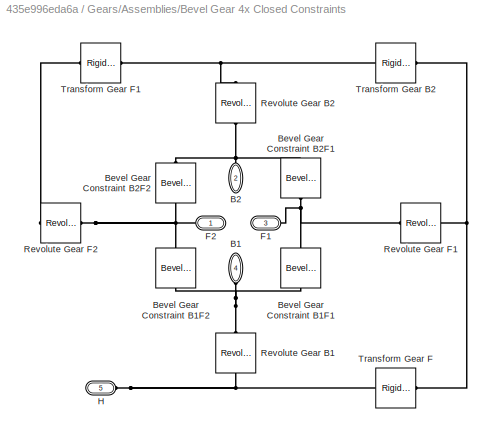
BLOCK [SubSystem] Gears/Assemblies/Bevel Gear 4x Closed Constraints
  Ports = [0, 0, 0, 0, 0, 5]
  RequestExecContextInheritance = off
BLOCK [PMIOPort] Gears/Assemblies/Bevel Gear 4x Closed Constraints/B1
  Port = 4
  Side = Left
BLOCK [PMIOPort] Gears/Assemblies/Bevel Gear 4x Closed Constraints/B2
  Port = 2
  Side = Left
BLOCK [Reference] Gears/Assemblies/Bevel Gear 4x Closed Constraints/Bevel Gear Constraint B1F1  REF=sm_lib/Gears and
Couplings/Gears/Bevel Gear
Constraint
  Ports = [0, 0, 0, 0, 0, 1, 1]
  SourceBlock = sm_lib/Gears and\nCouplings/Gears/Bevel Gear\nConstraint
  SourceProductBaseCode = MS
  SourceProductName = Simscape Multibody
  SourceType = Bevel Gear\nConstraint
BLOCK [Reference] Gears/Assemblies/Bevel Gear 4x Closed Constraints/Bevel Gear Constraint B1F2  REF=sm_lib/Gears and
Couplings/Gears/Bevel Gear
Constraint
  Ports = [0, 0, 0, 0, 0, 1, 1]
  SourceBlock = sm_lib/Gears and\nCouplings/Gears/Bevel Gear\nConstraint
  SourceProductBaseCode = MS
  SourceProductName = Simscape Multibody
  SourceType = Bevel Gear\nConstraint
BLOCK [Reference] Gears/Assemblies/Bevel Gear 4x Closed Constraints/Bevel Gear Constraint B2F1  REF=sm_lib/Gears and
Couplings/Gears/Bevel Gear
Constraint
  Ports = [0, 0, 0, 0, 0, 1, 1]
  SourceBlock = sm_lib/Gears and\nCouplings/Gears/Bevel Gear\nConstraint
  SourceProductBaseCode = MS
  SourceProductName = Simscape Multibody
  SourceType = Bevel Gear\nConstraint
BLOCK [Reference] Gears/Assemblies/Bevel Gear 4x Closed Constraints/Bevel Gear Constraint B2F2  REF=sm_lib/Gears and
Couplings/Gears/Bevel Gear
Constraint
  Ports = [0, 0, 0, 0, 0, 1, 1]
  SourceBlock = sm_lib/Gears and\nCouplings/Gears/Bevel Gear\nConstraint
  SourceProductBaseCode = MS
  SourceProductName = Simscape Multibody
  SourceType = Bevel Gear\nConstraint
BLOCK [PMIOPort] Gears/Assemblies/Bevel Gear 4x Closed Constraints/F1
  Port = 3
  Side = Left
BLOCK [PMIOPort] Gears/Assemblies/Bevel Gear 4x Closed Constraints/F2
  Side = Left
BLOCK [PMIOPort] Gears/Assemblies/Bevel Gear 4x Closed Constraints/H
  Port = 5
  Side = Left
BLOCK [Reference] Gears/Assemblies/Bevel Gear 4x Closed Constraints/Revolute Gear B1  REF=sm_lib/Joints/Revolute Joint
  Ports = [0, 0, 0, 0, 0, 1, 1]
  SourceBlock = sm_lib/Joints/Revolute Joint
  SourceProductBaseCode = MS
  SourceProductName = Simscape Multibody
  SourceType = Revolute Joint
BLOCK [Reference] Gears/Assemblies/Bevel Gear 4x Closed Constraints/Revolute Gear B2  REF=sm_lib/Joints/Revolute Joint
  Ports = [0, 0, 0, 0, 0, 1, 1]
  SourceBlock = sm_lib/Joints/Revolute Joint
  SourceProductBaseCode = MS
  SourceProductName = Simscape Multibody
  SourceType = Revolute Joint
BLOCK [Reference] Gears/Assemblies/Bevel Gear 4x Closed Constraints/Revolute Gear F1  REF=sm_lib/Joints/Revolute Joint
  Ports = [0, 0, 0, 0, 0, 1, 1]
  SourceBlock = sm_lib/Joints/Revolute Joint
  SourceProductBaseCode = MS
  SourceProductName = Simscape Multibody
  SourceType = Revolute Joint
BLOCK [Reference] Gears/Assemblies/Bevel Gear 4x Closed Constraints/Revolute Gear F2  REF=sm_lib/Joints/Revolute Joint
  Ports = [0, 0, 0, 0, 0, 1, 1]
  SourceBlock = sm_lib/Joints/Revolute Joint
  SourceProductBaseCode = MS
  SourceProductName = Simscape Multibody
  SourceType = Revolute Joint
BLOCK [Reference] Gears/Assemblies/Bevel Gear 4x Closed Constraints/Transform Gear B2  REF=sm_lib/Frames and
Transforms/Rigid
Transform
  Ports = [0, 0, 0, 0, 0, 1, 1]
  SourceBlock = sm_lib/Frames and\nTransforms/Rigid\nTransform
  SourceProductBaseCode = MS
  SourceProductName = Simscape Multibody
  SourceType = Rigid\nTransform
BLOCK [Reference] Gears/Assemblies/Bevel Gear 4x Closed Constraints/Transform Gear F  REF=sm_lib/Frames and
Transforms/Rigid
Transform
  Ports = [0, 0, 0, 0, 0, 1, 1]
  SourceBlock = sm_lib/Frames and\nTransforms/Rigid\nTransform
  SourceProductBaseCode = MS
  SourceProductName = Simscape Multibody
  SourceType = Rigid\nTransform
BLOCK [Reference] Gears/Assemblies/Bevel Gear 4x Closed Constraints/Transform Gear F1  REF=sm_lib/Frames and
Transforms/Rigid
Transform
  Ports = [0, 0, 0, 0, 0, 1, 1]
  SourceBlock = sm_lib/Frames and\nTransforms/Rigid\nTransform
  SourceProductBaseCode = MS
  SourceProductName = Simscape Multibody
  SourceType = Rigid\nTransform
BLOCK [SubSystem] Gears/Assemblies/Bevel Gear Assembly
  Ports = [0, 0, 0, 0, 0, 3]
  RequestExecContextInheritance = off
  Tag = PublishSubsystem
BLOCK [PMIOPort] Gears/Assemblies/Bevel Gear Assembly/B
  Port = 2
  Side = Left
BLOCK [Reference] Gears/Assemblies/Bevel Gear Assembly/Constraints  REF=$bdroot/Gears/Assemblies/Bevel Gear
Constraints
  Ports = [0, 0, 0, 0, 0, 3]
  SourceBlock = $bdroot/Gears/Assemblies/Bevel Gear\nConstraints
  SourceType = Bevel Gear Assembly Constraints
BLOCK [PMIOPort] Gears/Assemblies/Bevel Gear Assembly/F
  Side = Left
BLOCK [Reference] Gears/Assemblies/Bevel Gear Assembly/Gear B  REF=$bdroot/Gears/Bevel Gear
  Ports = [0, 0, 0, 0, 0, 0, 1]
  SourceBlock = $bdroot/Gears/Bevel Gear
  SourceType = Bevel Gear
BLOCK [Reference] Gears/Assemblies/Bevel Gear Assembly/Gear F  REF=$bdroot/Gears/Bevel Gear
  Ports = [0, 0, 0, 0, 0, 0, 1]
  SourceBlock = $bdroot/Gears/Bevel Gear
  SourceType = Bevel Gear
BLOCK [PMIOPort] Gears/Assemblies/Bevel Gear Assembly/H
  Port = 3
  Side = Left
BLOCK [SubSystem] Gears/Assemblies/Bevel Gear Constraints
  Ports = [0, 0, 0, 0, 0, 3]
  RequestExecContextInheritance = off
BLOCK [PMIOPort] Gears/Assemblies/Bevel Gear Constraints/B
  Port = 2
  Side = Left
BLOCK [Reference] Gears/Assemblies/Bevel Gear Constraints/Bevel Gear Constraint  REF=sm_lib/Gears and
Couplings/Gears/Bevel Gear
Constraint
  Ports = [0, 0, 0, 0, 0, 1, 1]
  SourceBlock = sm_lib/Gears and\nCouplings/Gears/Bevel Gear\nConstraint
  SourceProductBaseCode = MS
  SourceProductName = Simscape Multibody
  SourceType = Bevel Gear\nConstraint
BLOCK [SubSystem] Gears/Assemblies/Bevel Gear Constraints/Check Frames Bevel
  Ports = [0, 0, 0, 0, 0, 0, 2]
  RequestExecContextInheritance = off
BLOCK [PMIOPort] Gears/Assemblies/Bevel Gear Constraints/Check Frames Bevel/B
  Port = 2
  Side = Right
BLOCK [Display] Gears/Assemblies/Bevel Gear Constraints/Check Frames Bevel/Display
  Decimation = 1e5
  Ports = [1]
BLOCK [Display] Gears/Assemblies/Bevel Gear Constraints/Check Frames Bevel/Display1
  Decimation = 1e5
  Ports = [1]
BLOCK [Display] Gears/Assemblies/Bevel Gear Constraints/Check Frames Bevel/Display2
  Decimation = 1e5
  Format = long
  Ports = [1]
BLOCK [Display] Gears/Assemblies/Bevel Gear Constraints/Check Frames Bevel/Display3
  Decimation = 1e5
  Ports = [1]
BLOCK [PMIOPort] Gears/Assemblies/Bevel Gear Constraints/Check Frames Bevel/F
  Side = Right
BLOCK [Reference] Gears/Assemblies/Bevel Gear Constraints/Check Frames Bevel/PS-Simulink Converter  REF=nesl_utility/PS-Simulink
Converter
  Ports = [0, 1, 0, 0, 0, 1]
  SourceBlock = nesl_utility/PS-Simulink\nConverter
  SourceProductBaseCode = SS
  SourceProductName = Simscape
  SourceType = PS-Simulink\nConverter
BLOCK [Reference] Gears/Assemblies/Bevel Gear Constraints/Check Frames Bevel/PS-Simulink Converter1  REF=nesl_utility/PS-Simulink
Converter
  Ports = [0, 1, 0, 0, 0, 1]
  SourceBlock = nesl_utility/PS-Simulink\nConverter
  SourceProductBaseCode = SS
  SourceProductName = Simscape
  SourceType = PS-Simulink\nConverter
BLOCK [Reference] Gears/Assemblies/Bevel Gear Constraints/Check Frames Bevel/PS-Simulink Converter2  REF=nesl_utility/PS-Simulink
Converter
  Ports = [0, 1, 0, 0, 0, 1]
  SourceBlock = nesl_utility/PS-Simulink\nConverter
  SourceProductBaseCode = SS
  SourceProductName = Simscape
  SourceType = PS-Simulink\nConverter
BLOCK [Reference] Gears/Assemblies/Bevel Gear Constraints/Check Frames Bevel/PS-Simulink Converter3  REF=nesl_utility/PS-Simulink
Converter
  Ports = [0, 1, 0, 0, 0, 1]
  SourceBlock = nesl_utility/PS-Simulink\nConverter
  SourceProductBaseCode = SS
  SourceProductName = Simscape
  SourceType = PS-Simulink\nConverter
BLOCK [Reference] Gears/Assemblies/Bevel Gear Constraints/Check Frames Bevel/Transform Sensor  REF=sm_lib/Frames and
Transforms/Transform
Sensor
  Ports = [0, 0, 0, 0, 0, 1, 5]
  SourceBlock = sm_lib/Frames and\nTransforms/Transform\nSensor
  SourceProductBaseCode = MS
  SourceProductName = Simscape Multibody
  SourceType = Transform\nSensor
BLOCK [PMIOPort] Gears/Assemblies/Bevel Gear Constraints/F
  Side = Left
BLOCK [PMIOPort] Gears/Assemblies/Bevel Gear Constraints/H
  Port = 3
  Side = Left
BLOCK [Reference] Gears/Assemblies/Bevel Gear Constraints/Revolute Gear B  REF=sm_lib/Joints/Revolute Joint
  Ports = [0, 0, 0, 0, 0, 1, 1]
  SourceBlock = sm_lib/Joints/Revolute Joint
  SourceProductBaseCode = MS
  SourceProductName = Simscape Multibody
  SourceType = Revolute Joint
BLOCK [Reference] Gears/Assemblies/Bevel Gear Constraints/Revolute Gear F  REF=sm_lib/Joints/Revolute Joint
  Ports = [0, 0, 0, 0, 0, 1, 1]
  SourceBlock = sm_lib/Joints/Revolute Joint
  SourceProductBaseCode = MS
  SourceProductName = Simscape Multibody
  SourceType = Revolute Joint
BLOCK [Reference] Gears/Assemblies/Bevel Gear Constraints/Transform Gear F  REF=sm_lib/Frames and
Transforms/Rigid
Transform
  Ports = [0, 0, 0, 0, 0, 1, 1]
  SourceBlock = sm_lib/Frames and\nTransforms/Rigid\nTransform
  SourceProductBaseCode = MS
  SourceProductName = Simscape Multibody
  SourceType = Rigid\nTransform
BLOCK [SubSystem] Gears/Assemblies/Common Gear Assembly
  Ports = [0, 0, 0, 0, 0, 3]
  RequestExecContextInheritance = off
  Tag = PublishSubsystem
BLOCK [PMIOPort] Gears/Assemblies/Common Gear Assembly/B
  Port = 2
  Side = Left
BLOCK [Reference] Gears/Assemblies/Common Gear Assembly/Constraints  REF=$bdroot/Gears/Assemblies/Common Gear
Constraints
  Ports = [0, 0, 0, 0, 0, 3]
  SourceBlock = $bdroot/Gears/Assemblies/Common Gear\nConstraints
  SourceType = Common Gear Assembly Constraints
BLOCK [PMIOPort] Gears/Assemblies/Common Gear Assembly/F
  Side = Left
BLOCK [Reference] Gears/Assemblies/Common Gear Assembly/Gear B  REF=$bdroot/Gears/Gear
  Ports = [0, 0, 0, 0, 0, 0, 1]
  SourceBlock = $bdroot/Gears/Gear
  SourceType = Gear
BLOCK [Reference] Gears/Assemblies/Common Gear Assembly/Gear F  REF=$bdroot/Gears/Gear
  Ports = [0, 0, 0, 0, 0, 0, 1]
  SourceBlock = $bdroot/Gears/Gear
  SourceType = Gear
BLOCK [PMIOPort] Gears/Assemblies/Common Gear Assembly/H
  Port = 3
  Side = Left
BLOCK [Reference] Gears/Assemblies/Common Gear Assembly/Transform B Offset Angle  REF=sm_lib/Frames and
Transforms/Rigid
Transform
  Ports = [0, 0, 0, 0, 0, 1, 1]
  SourceBlock = sm_lib/Frames and\nTransforms/Rigid\nTransform
  SourceProductBaseCode = MS
  SourceProductName = Simscape Multibody
  SourceType = Rigid\nTransform
BLOCK [Reference] Gears/Assemblies/Common Gear Assembly/Transform F Offset Angle  REF=sm_lib/Frames and
Transforms/Rigid
Transform
  Ports = [0, 0, 0, 0, 0, 1, 1]
  SourceBlock = sm_lib/Frames and\nTransforms/Rigid\nTransform
  SourceProductBaseCode = MS
  SourceProductName = Simscape Multibody
  SourceType = Rigid\nTransform
BLOCK [SubSystem] Gears/Assemblies/Common Gear Constraints
  Ports = [0, 0, 0, 0, 0, 3]
  RequestExecContextInheritance = off
BLOCK [PMIOPort] Gears/Assemblies/Common Gear Constraints/B
  Port = 2
  Side = Left
BLOCK [Reference] Gears/Assemblies/Common Gear Constraints/Common Gear Constraint  REF=sm_lib/Gears and
Couplings/Gears/Common Gear
Constraint
  Ports = [0, 0, 0, 0, 0, 1, 1]
  SourceBlock = sm_lib/Gears and\nCouplings/Gears/Common Gear\nConstraint
  SourceProductBaseCode = MS
  SourceProductName = Simscape Multibody
  SourceType = Common Gear\nConstraint
BLOCK [PMIOPort] Gears/Assemblies/Common Gear Constraints/F
  Side = Left
BLOCK [PMIOPort] Gears/Assemblies/Common Gear Constraints/H
  Port = 3
  Side = Left
BLOCK [Reference] Gears/Assemblies/Common Gear Constraints/Revolute Gear B  REF=sm_lib/Joints/Revolute Joint
  Ports = [0, 0, 0, 0, 0, 1, 1]
  SourceBlock = sm_lib/Joints/Revolute Joint
  SourceProductBaseCode = MS
  SourceProductName = Simscape Multibody
  SourceType = Revolute Joint
BLOCK [Reference] Gears/Assemblies/Common Gear Constraints/Revolute Gear F  REF=sm_lib/Joints/Revolute Joint
  Ports = [0, 0, 0, 0, 0, 1, 1]
  SourceBlock = sm_lib/Joints/Revolute Joint
  SourceProductBaseCode = MS
  SourceProductName = Simscape Multibody
  SourceType = Revolute Joint
BLOCK [Reference] Gears/Assemblies/Common Gear Constraints/Transform Gear F  REF=sm_lib/Frames and
Transforms/Rigid
Transform
  Ports = [0, 0, 0, 0, 0, 1, 1]
  SourceBlock = sm_lib/Frames and\nTransforms/Rigid\nTransform
  SourceProductBaseCode = MS
  SourceProductName = Simscape Multibody
  SourceType = Rigid\nTransform
BLOCK [SubSystem] Gears/Assemblies/Rack and Pinion Assembly
  Ports = [0, 0, 0, 0, 0, 3]
  RequestExecContextInheritance = off
BLOCK [Reference] Gears/Assemblies/Rack and Pinion Assembly/Constraints  REF=$bdroot/Gears/Assemblies/Rack and Pinion
Constraints
  Ports = [0, 0, 0, 0, 0, 3]
  SourceBlock = $bdroot/Gears/Assemblies/Rack and Pinion\nConstraints
  SourceType = Rack and Pinion Assembly Constraints
BLOCK [PMIOPort] Gears/Assemblies/Rack and Pinion Assembly/H
  Port = 3
  Side = Left
BLOCK [PMIOPort] Gears/Assemblies/Rack and Pinion Assembly/P
  Side = Left
BLOCK [Reference] Gears/Assemblies/Rack and Pinion Assembly/Pinion  REF=$bdroot/Gears/Gear
  Ports = [0, 0, 0, 0, 0, 0, 1]
  SourceBlock = $bdroot/Gears/Gear
  SourceType = Gear
BLOCK [PMIOPort] Gears/Assemblies/Rack and Pinion Assembly/R
  Port = 2
  Side = Left
BLOCK [Reference] Gears/Assemblies/Rack and Pinion Assembly/Rack  REF=$bdroot/Gears/Rack
  Ports = [0, 0, 0, 0, 0, 0, 1]
  SourceBlock = $bdroot/Gears/Rack
  SourceType = Rack
BLOCK [SubSystem] Gears/Assemblies/Rack and Pinion Constraints
  Ports = [0, 0, 0, 0, 0, 3]
  RequestExecContextInheritance = off
BLOCK [SubSystem] Gears/Assemblies/Rack and Pinion Constraints/Check Frames Rack and Pinion
  Ports = [0, 0, 0, 0, 0, 0, 2]
  RequestExecContextInheritance = off
BLOCK [PMIOPort] Gears/Assemblies/Rack and Pinion Constraints/Check Frames Rack and Pinion/B
  Side = Right
BLOCK [Display] Gears/Assemblies/Rack and Pinion Constraints/Check Frames Rack and Pinion/Display
  Decimation = 1e5
  Format = long
  Ports = [1]
BLOCK [Display] Gears/Assemblies/Rack and Pinion Constraints/Check Frames Rack and Pinion/Display1
  Decimation = 1
  Format = long
  Ports = [1]
BLOCK [Display] Gears/Assemblies/Rack and Pinion Constraints/Check Frames Rack and Pinion/Display2
  Decimation = 1
  Format = long
  Ports = [1]
BLOCK [Display] Gears/Assemblies/Rack and Pinion Constraints/Check Frames Rack and Pinion/Display3
  Decimation = 1e5
  Format = long
  Ports = [1]
BLOCK [PMIOPort] Gears/Assemblies/Rack and Pinion Constraints/Check Frames Rack and Pinion/F
  Port = 2
  Side = Right
BLOCK [Reference] Gears/Assemblies/Rack and Pinion Constraints/Check Frames Rack and Pinion/PS-Simulink Converter  REF=nesl_utility/PS-Simulink
Converter
  Ports = [0, 1, 0, 0, 0, 1]
  SourceBlock = nesl_utility/PS-Simulink\nConverter
  SourceProductBaseCode = SS
  SourceProductName = Simscape
  SourceType = PS-Simulink\nConverter
BLOCK [Reference] Gears/Assemblies/Rack and Pinion Constraints/Check Frames Rack and Pinion/PS-Simulink Converter1  REF=nesl_utility/PS-Simulink
Converter
  Ports = [0, 1, 0, 0, 0, 1]
  SourceBlock = nesl_utility/PS-Simulink\nConverter
  SourceProductBaseCode = SS
  SourceProductName = Simscape
  SourceType = PS-Simulink\nConverter
BLOCK [Reference] Gears/Assemblies/Rack and Pinion Constraints/Check Frames Rack and Pinion/PS-Simulink Converter2  REF=nesl_utility/PS-Simulink
Converter
  Ports = [0, 1, 0, 0, 0, 1]
  SourceBlock = nesl_utility/PS-Simulink\nConverter
  SourceProductBaseCode = SS
  SourceProductName = Simscape
  SourceType = PS-Simulink\nConverter
BLOCK [Reference] Gears/Assemblies/Rack and Pinion Constraints/Check Frames Rack and Pinion/PS-Simulink Converter3  REF=nesl_utility/PS-Simulink
Converter
  Ports = [0, 1, 0, 0, 0, 1]
  SourceBlock = nesl_utility/PS-Simulink\nConverter
  SourceProductBaseCode = SS
  SourceProductName = Simscape
  SourceType = PS-Simulink\nConverter
BLOCK [Reference] Gears/Assemblies/Rack and Pinion Constraints/Check Frames Rack and Pinion/Transform Sensor  REF=sm_lib/Frames and
Transforms/Transform
Sensor
  Ports = [0, 0, 0, 0, 0, 1, 5]
  SourceBlock = sm_lib/Frames and\nTransforms/Transform\nSensor
  SourceProductBaseCode = MS
  SourceProductName = Simscape Multibody
  SourceType = Transform\nSensor
BLOCK [PMIOPort] Gears/Assemblies/Rack and Pinion Constraints/H
  Port = 3
  Side = Left
BLOCK [PMIOPort] Gears/Assemblies/Rack and Pinion Constraints/P
  Side = Left
BLOCK [Reference] Gears/Assemblies/Rack and Pinion Constraints/Prismatic Rack  REF=sm_lib/Joints/Prismatic
Joint
  Ports = [0, 0, 0, 0, 0, 1, 1]
  SourceBlock = sm_lib/Joints/Prismatic\nJoint
  SourceProductBaseCode = MS
  SourceProductName = Simscape Multibody
  SourceType = Prismatic\nJoint
BLOCK [PMIOPort] Gears/Assemblies/Rack and Pinion Constraints/R
  Port = 2
  Side = Left
BLOCK [Reference] Gears/Assemblies/Rack and Pinion Constraints/Rack and Pinion Constraint  REF=sm_lib/Gears and
Couplings/Gears/Rack and Pinion
Constraint
  Ports = [0, 0, 0, 0, 0, 1, 1]
  SourceBlock = sm_lib/Gears and\nCouplings/Gears/Rack and Pinion\nConstraint
  SourceProductBaseCode = MS
  SourceProductName = Simscape Multibody
  SourceType = Rack and Pinion\nConstraint
BLOCK [Reference] Gears/Assemblies/Rack and Pinion Constraints/Revolute Pinion  REF=sm_lib/Joints/Revolute Joint
  Ports = [0, 0, 0, 0, 0, 1, 1]
  SourceBlock = sm_lib/Joints/Revolute Joint
  SourceProductBaseCode = MS
  SourceProductName = Simscape Multibody
  SourceType = Revolute Joint
BLOCK [Reference] Gears/Assemblies/Rack and Pinion Constraints/Transform Pinion  REF=sm_lib/Frames and
Transforms/Rigid
Transform
  Ports = [0, 0, 0, 0, 0, 1, 1]
  SourceBlock = sm_lib/Frames and\nTransforms/Rigid\nTransform
  SourceProductBaseCode = MS
  SourceProductName = Simscape Multibody
  SourceType = Rigid\nTransform
BLOCK [SubSystem] Gears/Assemblies/Worm Gear Assembly
  Ports = [0, 0, 0, 0, 0, 3]
  RequestExecContextInheritance = off
BLOCK [Reference] Gears/Assemblies/Worm Gear Assembly/Constraints  REF=$bdroot/Gears/Assemblies/Worm Gear
Constraints
  Ports = [0, 0, 0, 0, 0, 3]
  SourceBlock = $bdroot/Gears/Assemblies/Worm Gear\nConstraints
  SourceType = Worm Gear Assembly Constraints
BLOCK [PMIOPort] Gears/Assemblies/Worm Gear Assembly/G
  Side = Left
BLOCK [Reference] Gears/Assemblies/Worm Gear Assembly/Gear  REF=$bdroot/Basic/Cylinder
  Ports = [0, 0, 0, 0, 0, 0, 1]
  SourceBlock = $bdroot/Basic/Cylinder
  SourceType = Cylinder with Hole
BLOCK [PMIOPort] Gears/Assemblies/Worm Gear Assembly/H
  Port = 3
  Side = Left
BLOCK [PMIOPort] Gears/Assemblies/Worm Gear Assembly/W
  Port = 2
  Side = Left
BLOCK [Reference] Gears/Assemblies/Worm Gear Assembly/WormB  REF=$bdroot/Basic/Rod
  Ports = [0, 0, 0, 0, 0, 1, 1]
  SourceBlock = $bdroot/Basic/Rod
  SourceType = Rod
BLOCK [Reference] Gears/Assemblies/Worm Gear Assembly/WormF  REF=$bdroot/Basic/Rod
  Ports = [0, 0, 0, 0, 0, 1, 1]
  SourceBlock = $bdroot/Basic/Rod
  SourceType = Rod
BLOCK [SubSystem] Gears/Assemblies/Worm Gear Constraints
  Ports = [0, 0, 0, 0, 0, 3]
  RequestExecContextInheritance = off
BLOCK [PMIOPort] Gears/Assemblies/Worm Gear Constraints/G
  Side = Left
BLOCK [PMIOPort] Gears/Assemblies/Worm Gear Constraints/H
  Port = 3
  Side = Left
BLOCK [Reference] Gears/Assemblies/Worm Gear Constraints/Revolute Gear  REF=sm_lib/Joints/Revolute Joint
  Ports = [0, 0, 0, 0, 0, 1, 1]
  SourceBlock = sm_lib/Joints/Revolute Joint
  SourceProductBaseCode = MS
  SourceProductName = Simscape Multibody
  SourceType = Revolute Joint
BLOCK [Reference] Gears/Assemblies/Worm Gear Constraints/Revolute Worm  REF=sm_lib/Joints/Revolute Joint
  Ports = [0, 0, 0, 0, 0, 1, 1]
  SourceBlock = sm_lib/Joints/Revolute Joint
  SourceProductBaseCode = MS
  SourceProductName = Simscape Multibody
  SourceType = Revolute Joint
BLOCK [Reference] Gears/Assemblies/Worm Gear Constraints/Transform Gear  REF=sm_lib/Frames and
Transforms/Rigid
Transform
  Ports = [0, 0, 0, 0, 0, 1, 1]
  SourceBlock = sm_lib/Frames and\nTransforms/Rigid\nTransform
  SourceProductBaseCode = MS
  SourceProductName = Simscape Multibody
  SourceType = Rigid\nTransform
BLOCK [PMIOPort] Gears/Assemblies/Worm Gear Constraints/W
  Port = 2
  Side = Left
BLOCK [Reference] Gears/Assemblies/Worm Gear Constraints/Worm and Gear Constraint  REF=sm_lib/Gears and
Couplings/Gears/Worm and Gear
Constraint
  Ports = [0, 0, 0, 0, 0, 1, 1]
  SourceBlock = sm_lib/Gears and\nCouplings/Gears/Worm and Gear\nConstraint
  SourceProductBaseCode = MS
  SourceProductName = Simscape Multibody
  SourceType = Worm and Gear\nConstraint
BLOCK [SubSystem] Gears/Bevel Gear
  Ports = [0, 0, 0, 0, 0, 0, 1]
  RequestExecContextInheritance = off
BLOCK [PMIOPort] Gears/Bevel Gear/C
  Side = Right
BLOCK [Reference] Gears/Bevel Gear/Gear  REF=sm_lib/Body Elements/Solid
  Ports = [0, 0, 0, 0, 0, 0, 1]
  SourceBlock = sm_lib/Body Elements/Solid
  SourceProductBaseCode = MS
  SourceProductName = Simscape Multibody
  SourceType = Solid
BLOCK [Reference] Gears/Bevel Gear/Mark1  REF=sm_lib/Body Elements/Solid
  Ports = [0, 0, 0, 0, 0, 0, 1]
  SourceBlock = sm_lib/Body Elements/Solid
  SourceProductBaseCode = MS
  SourceProductName = Simscape Multibody
  SourceType = Solid
BLOCK [Reference] Gears/Bevel Gear/Mark2  REF=sm_lib/Body Elements/Solid
  Ports = [0, 0, 0, 0, 0, 0, 1]
  SourceBlock = sm_lib/Body Elements/Solid
  SourceProductBaseCode = MS
  SourceProductName = Simscape Multibody
  SourceType = Solid
BLOCK [Reference] Gears/Bevel Gear/Transform Mark 2  REF=sm_lib/Frames and
Transforms/Rigid
Transform
  Ports = [0, 0, 0, 0, 0, 1, 1]
  SourceBlock = sm_lib/Frames and\nTransforms/Rigid\nTransform
  SourceProductBaseCode = MS
  SourceProductName = Simscape Multibody
  SourceType = Rigid\nTransform
BLOCK [SubSystem] Gears/Forces
  Ports = []
  RequestExecContextInheritance = off
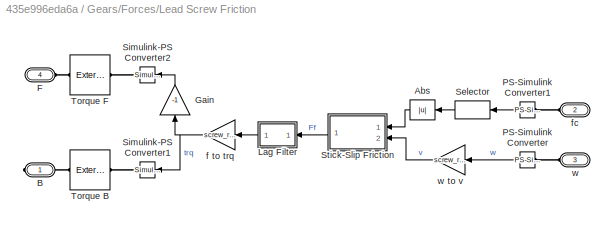
BLOCK [SubSystem] Gears/Forces/Lead Screw Friction
  AttributesFormatString = Lead Angle =  deg\nKinetic Friction = 0.195
  Ports = [0, 0, 0, 0, 0, 3, 1]
  RequestExecContextInheritance = off
  Tag = PublishSubsystem
BLOCK [Abs] Gears/Forces/Lead Screw Friction/Abs
  SaturateOnIntegerOverflow = off
BLOCK [PMIOPort] Gears/Forces/Lead Screw Friction/B
  Side = Right
BLOCK [PMIOPort] Gears/Forces/Lead Screw Friction/F
  Port = 4
  Side = Left
BLOCK [Gain] Gears/Forces/Lead Screw Friction/Gain
  Gain = -1
  OutDataTypeStr = Inherit: Inherit via internal rule
  ParamDataTypeStr = Inherit: Inherit via internal rule
  SaturateOnIntegerOverflow = off
BLOCK [SubSystem] Gears/Forces/Lead Screw Friction/Lag Filter
  Ports = [1, 1]
  RequestExecContextInheritance = off
BLOCK [Gain] Gears/Forces/Lead Screw Friction/Lag Filter/Gain
  Gain = 1/b
  OutDataTypeStr = Inherit: Inherit via internal rule
  ParamDataTypeStr = Inherit: Inherit via internal rule
  SaturateOnIntegerOverflow = off
BLOCK [Inport] Gears/Forces/Lead Screw Friction/Lag Filter/In
  IconDisplay = Port number
BLOCK [Integrator] Gears/Forces/Lead Screw Friction/Lag Filter/Integrator
  InitialCondition = x_initial
  Ports = [1, 1]
BLOCK [Outport] Gears/Forces/Lead Screw Friction/Lag Filter/Out
  IconDisplay = Port number
BLOCK [Sum] Gears/Forces/Lead Screw Friction/Lag Filter/Sum
  IconShape = round
  Inputs = |+-
  Ports = [2, 1]
BLOCK [Reference] Gears/Forces/Lead Screw Friction/PS-Simulink Converter  REF=nesl_utility/PS-Simulink
Converter
  Ports = [0, 1, 0, 0, 0, 1]
  SourceBlock = nesl_utility/PS-Simulink\nConverter
  SourceProductBaseCode = SS
  SourceProductName = Simscape
  SourceType = PS-Simulink\nConverter
BLOCK [Reference] Gears/Forces/Lead Screw Friction/PS-Simulink Converter1  REF=nesl_utility/PS-Simulink
Converter
  Ports = [0, 1, 0, 0, 0, 1]
  SourceBlock = nesl_utility/PS-Simulink\nConverter
  SourceProductBaseCode = SS
  SourceProductName = Simscape
  SourceType = PS-Simulink\nConverter
BLOCK [Selector] Gears/Forces/Lead Screw Friction/Selector
  IndexOptions = Index vector (dialog)
  Indices = [3]
  InputPortWidth = 3
  OutputSizes = 1
  Ports = [1, 1]
BLOCK [Reference] Gears/Forces/Lead Screw Friction/Simulink-PS Converter1  REF=nesl_utility/Simulink-PS
Converter
  Ports = [1, 0, 0, 0, 0, 0, 1]
  SourceBlock = nesl_utility/Simulink-PS\nConverter
  SourceProductBaseCode = SS
  SourceProductName = Simscape
  SourceType = Simulink-PS\nConverter
BLOCK [Reference] Gears/Forces/Lead Screw Friction/Simulink-PS Converter2  REF=nesl_utility/Simulink-PS
Converter
  Ports = [1, 0, 0, 0, 0, 0, 1]
  SourceBlock = nesl_utility/Simulink-PS\nConverter
  SourceProductBaseCode = SS
  SourceProductName = Simscape
  SourceType = Simulink-PS\nConverter
BLOCK [SubSystem] Gears/Forces/Lead Screw Friction/Stick-Slip Friction 
  Ports = [2, 1]
  RequestExecContextInheritance = off
  VariantControl = Stick_Slip_C
BLOCK [Lookup_n-D] Gears/Forces/Lead Screw Friction/Stick-Slip Friction /Coefficient of Friction vs Velocity
  BreakpointsForDimension1 = [-3 -1.5 -1 1 1.5 3]*vth
  InternalRulePriority = Speed
  NumberOfTableDimensions = 1
  Ports = [1, 1]
  Table = [-muk -muk -mus mus  muk muk]
BLOCK [Outport] Gears/Forces/Lead Screw Friction/Stick-Slip Friction /Ff
  IconDisplay = Port number
BLOCK [Inport] Gears/Forces/Lead Screw Friction/Stick-Slip Friction /Fn
  IconDisplay = Port number
BLOCK [Gain] Gears/Forces/Lead Screw Friction/Stick-Slip Friction /Gain2
  Multiplication = Matrix(K*u)
BLOCK [Product] Gears/Forces/Lead Screw Friction/Stick-Slip Friction /Product
  InputSameDT = off
  OutDataTypeStr = Inherit: Inherit via internal rule
  Ports = [2, 1]
  SaturateOnIntegerOverflow = off
BLOCK [Inport] Gears/Forces/Lead Screw Friction/Stick-Slip Friction /v
  IconDisplay = Port number
  Port = 2
BLOCK [Reference] Gears/Forces/Lead Screw Friction/Torque B  REF=sm_lib/Forces and
Torques/External Force
and Torque
  Ports = [0, 0, 0, 0, 0, 1, 1]
  SourceBlock = sm_lib/Forces and\nTorques/External Force\nand Torque
  SourceProductBaseCode = MS
  SourceProductName = Simscape Multibody
  SourceType = External Force\nand Torque
BLOCK [Reference] Gears/Forces/Lead Screw Friction/Torque F  REF=sm_lib/Forces and
Torques/External Force
and Torque
  Ports = [0, 0, 0, 0, 0, 1, 1]
  SourceBlock = sm_lib/Forces and\nTorques/External Force\nand Torque
  SourceProductBaseCode = MS
  SourceProductName = Simscape Multibody
  SourceType = External Force\nand Torque
BLOCK [Gain] Gears/Forces/Lead Screw Friction/f to trq
  AttributesFormatString = %<Gain>
  Gain = screw_radius
  OutDataTypeStr = Inherit: Inherit via internal rule
  ParamDataTypeStr = Inherit: Inherit via internal rule
  SaturateOnIntegerOverflow = off
BLOCK [PMIOPort] Gears/Forces/Lead Screw Friction/fc
  Port = 2
  Side = Left
BLOCK [PMIOPort] Gears/Forces/Lead Screw Friction/w
  Port = 3
  Side = Left
BLOCK [Gain] Gears/Forces/Lead Screw Friction/w to v
  AttributesFormatString = %<Gain>
  Gain = screw_radius
  OutDataTypeStr = Inherit: Inherit via internal rule
  ParamDataTypeStr = Inherit: Inherit via internal rule
  SaturateOnIntegerOverflow = off
BLOCK [Reference] Gears/Forces/Lead Screw Joint  REF=sm_lib/Joints/Lead Screw
Joint
  AttributesFormatString = %<Direction>
  Ports = [0, 0, 0, 0, 0, 1, 3]
  SourceBlock = sm_lib/Joints/Lead Screw\nJoint
  SourceProductBaseCode = MS
  SourceProductName = Simscape Multibody
  SourceType = Lead Screw\nJoint
BLOCK [SubSystem] Gears/Gear
  Ports = [0, 0, 0, 0, 0, 0, 1]
  RequestExecContextInheritance = off
BLOCK [PMIOPort] Gears/Gear/C
  Side = Right
BLOCK [Reference] Gears/Gear/Gear  REF=sm_lib/Body Elements/Solid
  Ports = [0, 0, 0, 0, 0, 0, 1]
  SourceBlock = sm_lib/Body Elements/Solid
  SourceProductBaseCode = MS
  SourceProductName = Simscape Multibody
  SourceType = Solid
BLOCK [Reference] Gears/Gear/Mark1  REF=sm_lib/Body Elements/Solid
  Ports = [0, 0, 0, 0, 0, 0, 1]
  SourceBlock = sm_lib/Body Elements/Solid
  SourceProductBaseCode = MS
  SourceProductName = Simscape Multibody
  SourceType = Solid
BLOCK [Reference] Gears/Gear/Mark2  REF=sm_lib/Body Elements/Solid
  Ports = [0, 0, 0, 0, 0, 0, 1]
  SourceBlock = sm_lib/Body Elements/Solid
  SourceProductBaseCode = MS
  SourceProductName = Simscape Multibody
  SourceType = Solid
BLOCK [Reference] Gears/Gear/Transform Mark2  REF=sm_lib/Frames and
Transforms/Rigid
Transform
  Ports = [0, 0, 0, 0, 0, 1, 1]
  SourceBlock = sm_lib/Frames and\nTransforms/Rigid\nTransform
  SourceProductBaseCode = MS
  SourceProductName = Simscape Multibody
  SourceType = Rigid\nTransform
BLOCK [SubSystem] Gears/Rack
  Ports = [0, 0, 0, 0, 0, 0, 1]
  RequestExecContextInheritance = off
BLOCK [PMIOPort] Gears/Rack/C
  Side = Right
BLOCK [Reference] Gears/Rack/Rack  REF=sm_lib/Body Elements/Solid
  Ports = [0, 0, 0, 0, 0, 0, 1]
  SourceBlock = sm_lib/Body Elements/Solid
  SourceProductBaseCode = MS
  SourceProductName = Simscape Multibody
  SourceType = Solid
BLOCK [Reference] Gears/Rack/Transform Rack  REF=sm_lib/Frames and
Transforms/Rigid
Transform
  Ports = [0, 0, 0, 0, 0, 1, 1]
  SourceBlock = sm_lib/Frames and\nTransforms/Rigid\nTransform
  SourceProductBaseCode = MS
  SourceProductName = Simscape Multibody
  SourceType = Rigid\nTransform
BLOCK [SubSystem] Linkages
  Ports = []
  RequestExecContextInheritance = off
BLOCK [SubSystem] Linkages/Cam Circles
  Ports = [0, 0, 0, 0, 0, 1, 1]
  RequestExecContextInheritance = off
BLOCK [PMIOPort] Linkages/Cam Circles/B
  Side = Left
BLOCK [PMIOPort] Linkages/Cam Circles/F
  Port = 2
  Side = Right
BLOCK [Reference] Linkages/Cam Circles/Solid  REF=sm_lib/Body Elements/Solid
  Ports = [0, 0, 0, 0, 0, 0, 1]
  SourceBlock = sm_lib/Body Elements/Solid
  SourceProductBaseCode = MS
  SourceProductName = Simscape Multibody
  SourceType = Solid
BLOCK [Reference] Linkages/Cam Circles/Transform pX  REF=sm_lib/Frames and
Transforms/Rigid
Transform
  Ports = [0, 0, 0, 0, 0, 1, 1]
  SourceBlock = sm_lib/Frames and\nTransforms/Rigid\nTransform
  SourceProductBaseCode = MS
  SourceProductName = Simscape Multibody
  SourceType = Rigid\nTransform
BLOCK [SubSystem] Linkages/Link
  Ports = [0, 0, 0, 0, 0, 1, 1]
  RequestExecContextInheritance = off
BLOCK [SubSystem] Linkages/Link End
  Ports = [0, 0, 0, 0, 0, 1]
  RequestExecContextInheritance = off
BLOCK [PMIOPort] Linkages/Link End/+X
  Side = Left
BLOCK [Reference] Linkages/Link End/Solid  REF=sm_lib/Body Elements/Solid
  Ports = [0, 0, 0, 0, 0, 0, 1]
  SourceBlock = sm_lib/Body Elements/Solid
  SourceProductBaseCode = MS
  SourceProductName = Simscape Multibody
  SourceType = Solid
BLOCK [Reference] Linkages/Link End/Transform B  REF=sm_lib/Frames and
Transforms/Rigid
Transform
  Ports = [0, 0, 0, 0, 0, 1, 1]
  SourceBlock = sm_lib/Frames and\nTransforms/Rigid\nTransform
  SourceProductBaseCode = MS
  SourceProductName = Simscape Multibody
  SourceType = Rigid\nTransform
BLOCK [SubSystem] Linkages/Link Seg 1 Hole
  Ports = [0, 0, 0, 0, 0, 1, 1]
  RequestExecContextInheritance = off
BLOCK [PMIOPort] Linkages/Link Seg 1 Hole/B
  Port = 2
  Side = Left
BLOCK [PMIOPort] Linkages/Link Seg 1 Hole/F
  Side = Right
BLOCK [Reference] Linkages/Link Seg 1 Hole/Solid  REF=sm_lib/Body Elements/Solid
  Ports = [0, 0, 0, 0, 0, 0, 1]
  SourceBlock = sm_lib/Body Elements/Solid
  SourceProductBaseCode = MS
  SourceProductName = Simscape Multibody
  SourceType = Solid
BLOCK [Reference] Linkages/Link Seg 1 Hole/Transform B  REF=sm_lib/Frames and
Transforms/Rigid
Transform
  Ports = [0, 0, 0, 0, 0, 1, 1]
  SourceBlock = sm_lib/Frames and\nTransforms/Rigid\nTransform
  SourceProductBaseCode = MS
  SourceProductName = Simscape Multibody
  SourceType = Rigid\nTransform
BLOCK [Reference] Linkages/Link Seg 1 Hole/Transform F  REF=sm_lib/Frames and
Transforms/Rigid
Transform
  Ports = [0, 0, 0, 0, 0, 1, 1]
  SourceBlock = sm_lib/Frames and\nTransforms/Rigid\nTransform
  SourceProductBaseCode = MS
  SourceProductName = Simscape Multibody
  SourceType = Rigid\nTransform
BLOCK [SubSystem] Linkages/Link Seg 2 Hole
  Ports = [0, 0, 0, 0, 0, 1, 1]
  RequestExecContextInheritance = off
BLOCK [PMIOPort] Linkages/Link Seg 2 Hole/B
  Port = 2
  Side = Left
BLOCK [PMIOPort] Linkages/Link Seg 2 Hole/F
  Side = Right
BLOCK [Reference] Linkages/Link Seg 2 Hole/Solid  REF=sm_lib/Body Elements/Solid
  Ports = [0, 0, 0, 0, 0, 0, 1]
  SourceBlock = sm_lib/Body Elements/Solid
  SourceProductBaseCode = MS
  SourceProductName = Simscape Multibody
  SourceType = Solid
BLOCK [Reference] Linkages/Link Seg 2 Hole/Transform B  REF=sm_lib/Frames and
Transforms/Rigid
Transform
  Ports = [0, 0, 0, 0, 0, 1, 1]
  SourceBlock = sm_lib/Frames and\nTransforms/Rigid\nTransform
  SourceProductBaseCode = MS
  SourceProductName = Simscape Multibody
  SourceType = Rigid\nTransform
BLOCK [Reference] Linkages/Link Seg 2 Hole/Transform F  REF=sm_lib/Frames and
Transforms/Rigid
Transform
  Ports = [0, 0, 0, 0, 0, 1, 1]
  SourceBlock = sm_lib/Frames and\nTransforms/Rigid\nTransform
  SourceProductBaseCode = MS
  SourceProductName = Simscape Multibody
  SourceType = Rigid\nTransform
BLOCK [PMIOPort] Linkages/Link/B
  Port = 2
  Side = Left
BLOCK [PMIOPort] Linkages/Link/F
  Side = Right
BLOCK [Reference] Linkages/Link/Solid  REF=sm_lib/Body Elements/Solid
  Ports = [0, 0, 0, 0, 0, 0, 1]
  SourceBlock = sm_lib/Body Elements/Solid
  SourceProductBaseCode = MS
  SourceProductName = Simscape Multibody
  SourceType = Solid
BLOCK [Reference] Linkages/Link/Transform B  REF=sm_lib/Frames and
Transforms/Rigid
Transform
  Ports = [0, 0, 0, 0, 0, 1, 1]
  SourceBlock = sm_lib/Frames and\nTransforms/Rigid\nTransform
  SourceProductBaseCode = MS
  SourceProductName = Simscape Multibody
  SourceType = Rigid\nTransform
BLOCK [Reference] Linkages/Link/Transform F  REF=sm_lib/Frames and
Transforms/Rigid
Transform
  Ports = [0, 0, 0, 0, 0, 1, 1]
  SourceBlock = sm_lib/Frames and\nTransforms/Rigid\nTransform
  SourceProductBaseCode = MS
  SourceProductName = Simscape Multibody
  SourceType = Rigid\nTransform
BLOCK [SubSystem] Linkages/Triangle Link
  Ports = [0, 0, 0, 0, 0, 1, 2]
  RequestExecContextInheritance = off
BLOCK [PMIOPort] Linkages/Triangle Link/F
  Port = 3
  Side = Right
BLOCK [PMIOPort] Linkages/Triangle Link/H
  Port = 2
  Side = Right
BLOCK [PMIOPort] Linkages/Triangle Link/R
  Side = Left
BLOCK [Reference] Linkages/Triangle Link/Solid  REF=sm_lib/Body Elements/Solid
  Ports = [0, 0, 0, 0, 0, 0, 1]
  SourceBlock = sm_lib/Body Elements/Solid
  SourceProductBaseCode = MS
  SourceProductName = Simscape Multibody
  SourceType = Solid
BLOCK [Reference] Linkages/Triangle Link/Transform F  REF=sm_lib/Frames and
Transforms/Rigid
Transform
  Ports = [0, 0, 0, 0, 0, 1, 1]
  SourceBlock = sm_lib/Frames and\nTransforms/Rigid\nTransform
  SourceProductBaseCode = MS
  SourceProductName = Simscape Multibody
  SourceType = Rigid\nTransform
BLOCK [Reference] Linkages/Triangle Link/Transform H  REF=sm_lib/Frames and
Transforms/Rigid
Transform
  Ports = [0, 0, 0, 0, 0, 1, 1]
  SourceBlock = sm_lib/Frames and\nTransforms/Rigid\nTransform
  SourceProductBaseCode = MS
  SourceProductName = Simscape Multibody
  SourceType = Rigid\nTransform
ANNOTATION (root): Simscape Multibody Parts Library v3.0 <copyright redacted>
ANNOTATION Gears/Assemblies/Bevel Gear 2x Constraints/Check Frames Bevel: To verify the locations of the base and follower frames for the Bevel Gear Constraint, comment out the Bevel Gear Constraint and simulate for 1e-3 seconds. Check the values in the Display blocks above.
ANNOTATION Gears/Assemblies/Bevel Gear 2x Constraints/Check Frames Bevel: At time = 0
ANNOTATION Gears/Assemblies/Bevel Gear 2x Constraints/Check Frames Bevel: Should be 0
ANNOTATION Gears/Assemblies/Bevel Gear 2x Constraints/Check Frames Bevel: Should be 90 deg for Perpendicular
ANNOTATION Gears/Assemblies/Bevel Gear 2x Constraints/Check Frames Bevel: Should be Base Radius
ANNOTATION Gears/Assemblies/Bevel Gear 2x Constraints/Check Frames Bevel: Should be Follower Radius
ANNOTATION Gears/Assemblies/Bevel Gear Constraints/Check Frames Bevel: To verify the locations of the base and follower frames for the Bevel Gear Constraint, comment out the Bevel Gear Constraint and simulate for 1e-3 seconds. Check the values in the Display blocks above.
ANNOTATION Gears/Assemblies/Bevel Gear Constraints/Check Frames Bevel: At time = 0
ANNOTATION Gears/Assemblies/Bevel Gear Constraints/Check Frames Bevel: Should be 0
ANNOTATION Gears/Assemblies/Bevel Gear Constraints/Check Frames Bevel: Should be 90 deg for Perpendicular
ANNOTATION Gears/Assemblies/Bevel Gear Constraints/Check Frames Bevel: Should be Base Radius
ANNOTATION Gears/Assemblies/Bevel Gear Constraints/Check Frames Bevel: Should be Follower Radius
ANNOTATION Gears/Assemblies/Rack and Pinion Constraints/Check Frames Rack and Pinion: At time = 0
ANNOTATION Gears/Assemblies/Rack and Pinion Constraints/Check Frames Rack and Pinion: Should be 0
ANNOTATION Gears/Assemblies/Rack and Pinion Constraints/Check Frames Rack and Pinion: Should be 90 deg
ANNOTATION Gears/Assemblies/Rack and Pinion Constraints/Check Frames Rack and Pinion: Should be separation of rack and pinion
PNET net1: Basic/Cone/C:RConn1 -- Basic/Cone/Mark1:RConn1 -- Basic/Cone/Transform Mark 2:LConn1 -- Basic/Cone/Transform Sweep Angle:LConn1
PLINE Basic/Cone/Cone:RConn1 -- Basic/Cone/Transform Sweep Angle:RConn1
PLINE Basic/Cone/Mark2:RConn1 -- Basic/Cone/Transform Mark 2:RConn1
PNET net2: Basic/Cylinder/C:RConn1 -- Basic/Cylinder/Cylinder:RConn1 -- Basic/Cylinder/Mark1:RConn1 -- Basic/Cylinder/Transform Mark 2:LConn1
PLINE Basic/Cylinder/Mark2:RConn1 -- Basic/Cylinder/Transform Mark 2:RConn1
PLINE Basic/Mesh/B:RConn1 -- Basic/Mesh/Solid:LConn2
PLINE Basic/Mesh/F:RConn1 -- Basic/Mesh/Solid:LConn1
PLINE Basic/Mesh/R:RConn1 -- Basic/Mesh/Solid:RConn1
PLINE Extrusions/Box Fillet Tube/B:RConn1 -- Extrusions/Box Fillet Tube/Transform B:LConn1
PLINE Extrusions/Box Fillet Tube/F:RConn1 -- Extrusions/Box Fillet Tube/Transform F:RConn1
PNET net3: Extrusions/Box Fillet Tube/Solid:RConn1 -- Extrusions/Box Fillet Tube/Transform B:RConn1 -- Extrusions/Box Fillet Tube/Transform F:LConn1
PLINE Extrusions/Box Tube/B:RConn1 -- Extrusions/Box Tube/Transform B:LConn1
PLINE Extrusions/Box Tube/F:RConn1 -- Extrusions/Box Tube/Transform F:RConn1
PNET net4: Extrusions/Box Tube/Solid:RConn1 -- Extrusions/Box Tube/Transform B:RConn1 -- Extrusions/Box Tube/Transform F:LConn1
PLINE Extrusions/Circular Tube/B:RConn1 -- Extrusions/Circular Tube/Transform B:LConn1
PLINE Extrusions/Circular Tube/F:RConn1 -- Extrusions/Circular Tube/Transform F:RConn1
PNET net5: Extrusions/Circular Tube/Solid:RConn1 -- Extrusions/Circular Tube/Transform B:RConn1 -- Extrusions/Circular Tube/Transform F:LConn1
PLINE Extrusions/Custom Extrusion/B:RConn1 -- Extrusions/Custom Extrusion/Transform B:LConn1
PLINE Extrusions/Custom Extrusion/F:RConn1 -- Extrusions/Custom Extrusion/Transform F:RConn1
PNET net6: Extrusions/Custom Extrusion/Solid:RConn1 -- Extrusions/Custom Extrusion/Transform B:RConn1 -- Extrusions/Custom Extrusion/Transform F:LConn1
PLINE Extrusions/Elliptical Tube/B:RConn1 -- Extrusions/Elliptical Tube/Transform B:LConn1
PLINE Extrusions/Elliptical Tube/F:RConn1 -- Extrusions/Elliptical Tube/Transform F:RConn1
PNET net7: Extrusions/Elliptical Tube/Solid:RConn1 -- Extrusions/Elliptical Tube/Transform B:RConn1 -- Extrusions/Elliptical Tube/Transform F:LConn1
PNET net8: Gears/Bevel Gear/C:RConn1 -- Gears/Bevel Gear/Gear:RConn1 -- Gears/Bevel Gear/Mark1:RConn1 -- Gears/Bevel Gear/Transform Mark 2:LConn1
PLINE Gears/Bevel Gear/Mark2:RConn1 -- Gears/Bevel Gear/Transform Mark 2:RConn1
PLINE Gears/Forces/Lead Screw Friction:LConn1 -- Gears/Forces/Lead Screw Joint:RConn3
PLINE Gears/Forces/Lead Screw Friction:LConn2 -- Gears/Forces/Lead Screw Joint:RConn2
PLINE Gears/Forces/Lead Screw Friction:RConn1 -- Gears/Forces/Lead Screw Joint:LConn1
PNET net9: Gears/Gear/C:RConn1 -- Gears/Gear/Gear:RConn1 -- Gears/Gear/Mark1:RConn1 -- Gears/Gear/Transform Mark2:LConn1
PLINE Gears/Gear/Mark2:RConn1 -- Gears/Gear/Transform Mark2:RConn1
PLINE Gears/Rack/C:RConn1 -- Gears/Rack/Transform Rack:LConn1
PLINE Gears/Rack/Rack:RConn1 -- Gears/Rack/Transform Rack:RConn1
PNET net10: Linkages/Cam Circles/B:RConn1 -- Linkages/Cam Circles/Solid:RConn1 -- Linkages/Cam Circles/Transform pX:LConn1
PLINE Linkages/Cam Circles/F:RConn1 -- Linkages/Cam Circles/Transform pX:RConn1
PLINE Linkages/Link Seg 1 Hole/B:RConn1 -- Linkages/Link Seg 1 Hole/Transform B:RConn1
PLINE Linkages/Link Seg 1 Hole/F:RConn1 -- Linkages/Link Seg 1 Hole/Transform F:RConn1
PNET net11: Linkages/Link Seg 1 Hole/Solid:RConn1 -- Linkages/Link Seg 1 Hole/Transform B:LConn1 -- Linkages/Link Seg 1 Hole/Transform F:LConn1
PLINE Linkages/Link Seg 2 Hole/B:RConn1 -- Linkages/Link Seg 2 Hole/Transform B:RConn1
PLINE Linkages/Link Seg 2 Hole/F:RConn1 -- Linkages/Link Seg 2 Hole/Transform F:RConn1
PNET net12: Linkages/Link Seg 2 Hole/Solid:RConn1 -- Linkages/Link Seg 2 Hole/Transform B:LConn1 -- Linkages/Link Seg 2 Hole/Transform F:LConn1
PLINE Linkages/Link/B:RConn1 -- Linkages/Link/Transform B:RConn1
PLINE Linkages/Link/F:RConn1 -- Linkages/Link/Transform F:RConn1
PNET net13: Linkages/Link/Solid:RConn1 -- Linkages/Link/Transform B:LConn1 -- Linkages/Link/Transform F:LConn1
PLINE Linkages/Triangle Link/F:RConn1 -- Linkages/Triangle Link/Transform F:RConn1
PLINE Linkages/Triangle Link/H:RConn1 -- Linkages/Triangle Link/Transform H:RConn1
PNET net14: Linkages/Triangle Link/R:RConn1 -- Linkages/Triangle Link/Solid:RConn1 -- Linkages/Triangle Link/Transform F:LConn1 -- Linkages/Triangle Link/Transform H:LConn1
note: PNET lines group multi-terminal physical nets as a canonical sorted terminal list (undirected conserving connections); 2-terminal nets keep the pairwise PLINE form
